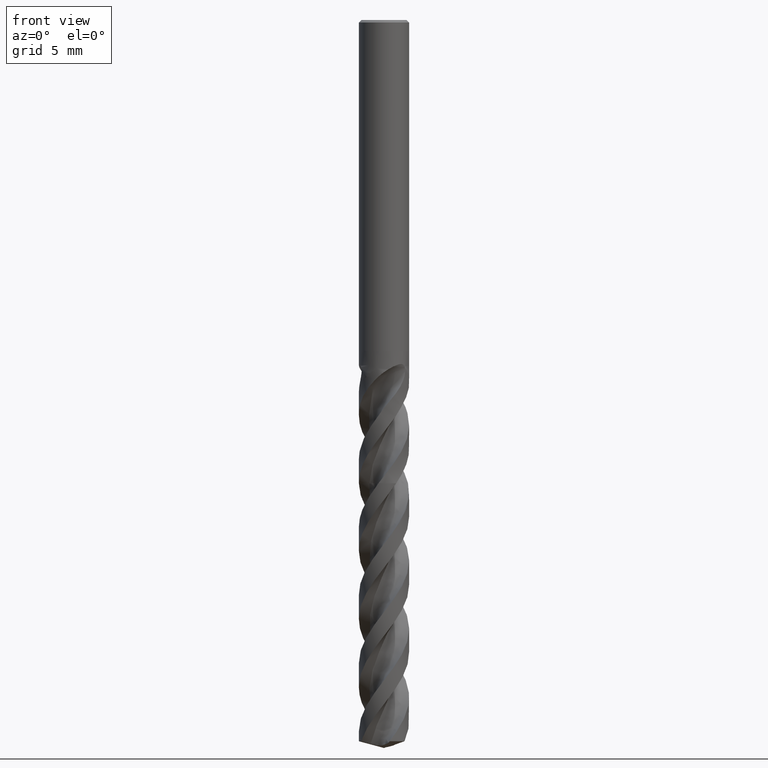
[diagram: clean part render]
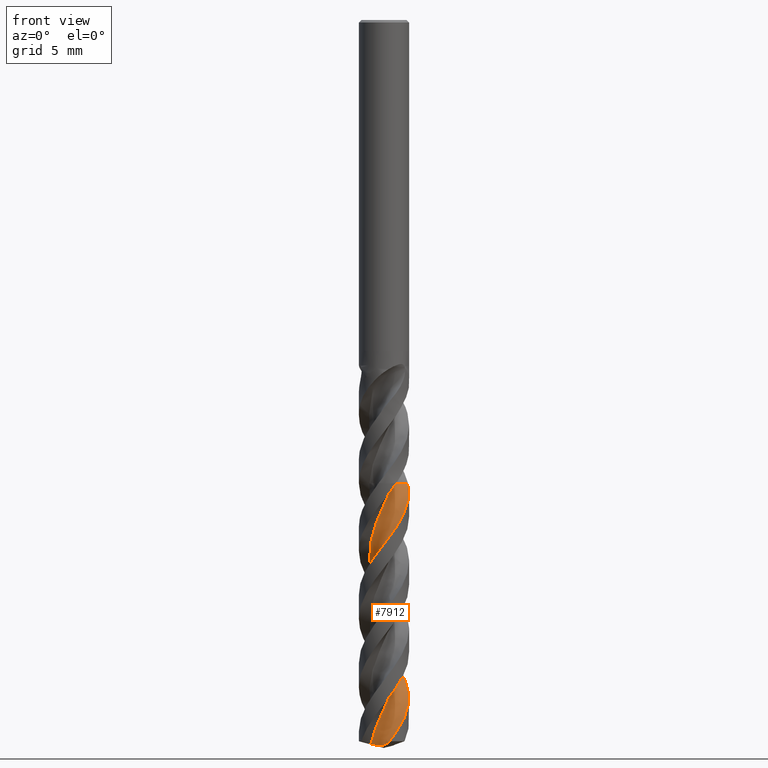
[diagram: same view with one face highlighted and labeled with its STEP entity id]
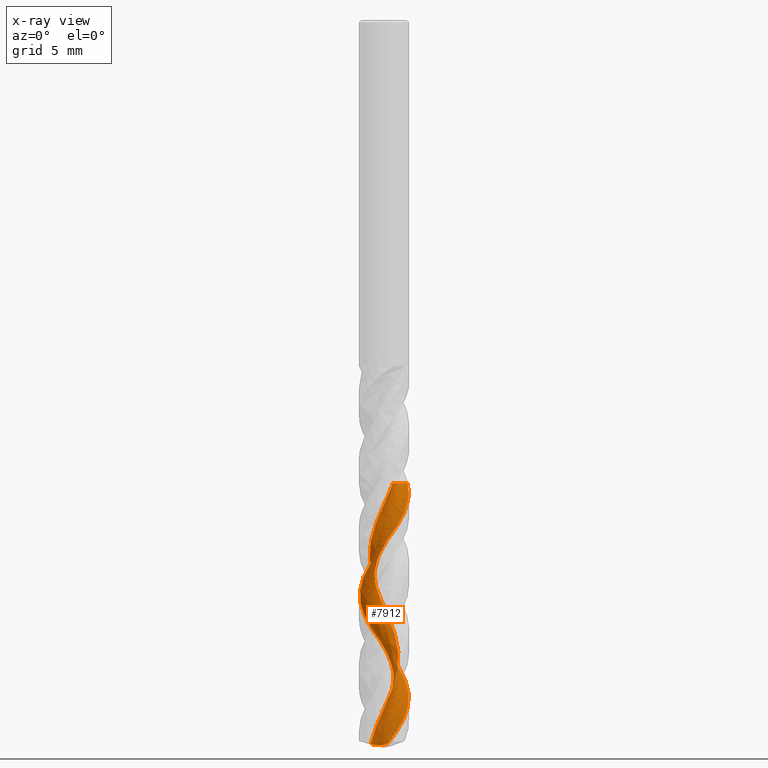
[diagram: x-ray of the same camera — body ghosted, the highlighted face saturated]
A machine part, front view. The second image highlights one B-rep face of the part: STEP entity #7912.
The next image is the same camera in x-ray: the body ghosted, the highlighted face saturated — about 0% of this face is hidden behind the body in this view.
In plain terms, the highlighted face is a freeform B-spline surface patch.
Its self-contained STEP definition (entity closure, byte-faithful):
#3330 = VERTEX_POINT('', #3331);
#3331 = CARTESIAN_POINT('', (0.674951373507723, -0.884292900200909, -35.));
#3337 = EDGE_CURVE('', #3330, #3338, #3340, .T.);
#3338 = VERTEX_POINT('', #3339);
#3339 = CARTESIAN_POINT('', (1.78170179399317, 0.568779606978585, -35.));
#3340 = B_SPLINE_CURVE_WITH_KNOTS('', 3, (#3341, #3342, #3343, #3344, #3345, #3346, #3347, #3348, #3349, #3350, #3351, #3352, #3353, #3354, #3355, #3356, #3357, #3358, #3359, #3360, #3361, #3362, #3363, #3364, #3365, #3366, #3367, #3368, #3369, #3370, #3371, #3372, #3373, #3374, #3375, #3376, #3377, #3378, #3379, #3380, #3381, #3382, #3383, #3384, #3385, #3386, #3387, #3388, #3389, #3390, #3391, #3392, #3393, #3394, #3395), .UNSPECIFIED., .F., .U., (4, 3, 3, 3, 3, 3, 3, 3, 3, 3, 3, 3, 3, 3, 3, 3, 3, 3, 4), (0., 0.132324855211031, 0.264404538585482, 0.396246487477675, 0.527856188815457, 0.659237353770378, 0.790392034522508, 0.921320690965383, 1.05202221184139, 1.06930589343182, 1.15730280134216, 1.28946437431475, 1.42138592904593, 1.55307358863559, 1.68453164840057, 1.81576271113416, 1.94676777006709, 2.07754624507811, 2.13929426573013), .UNSPECIFIED.);
#3341 = CARTESIAN_POINT('', (0.674951373507724, -0.884292900200909, -35.));
#3342 = CARTESIAN_POINT('', (0.661537442919636, -0.842273770295297, -35.));
#3343 = CARTESIAN_POINT('', (0.650602302046266, -0.799382014179555, -35.));
#3344 = CARTESIAN_POINT('', (0.642261175459596, -0.756069586181209, -35.));
#3345 = CARTESIAN_POINT('', (0.633935503334003, -0.712837407562334, -35.));
#3346 = CARTESIAN_POINT('', (0.628165047214315, -0.66903469666209, -35.));
#3347 = CARTESIAN_POINT('', (0.625010386404687, -0.62512130235405, -35.));
#3348 = CARTESIAN_POINT('', (0.621861403770803, -0.581286949180825, -35.));
#3349 = CARTESIAN_POINT('', (0.621307785934403, -0.537189334411207, -35.));
#3350 = CARTESIAN_POINT('', (0.623355324027949, -0.49328974218646, -35.));
#3351 = CARTESIAN_POINT('', (0.625399255259501, -0.449467481744349, -35.));
#3352 = CARTESIAN_POINT('', (0.63004226241018, -0.405690148728275, -35.));
#3353 = CARTESIAN_POINT('', (0.637235947709945, -0.36241406922766, -35.));
#3354 = CARTESIAN_POINT('', (0.644417141386364, -0.319213137368693, -35.));
#3355 = CARTESIAN_POINT('', (0.65416501835271, -0.27636200054907, -35.));
#3356 = CARTESIAN_POINT('', (0.666378320369397, -0.234305784481162, -35.));
#3357 = CARTESIAN_POINT('', (0.678570568226823, -0.192322067911731, -35.));
#3358 = CARTESIAN_POINT('', (0.693261825870369, -0.150985530236967, -35.));
#3359 = CARTESIAN_POINT('', (0.710300008936672, -0.110724088601099, -35.));
#3360 = CARTESIAN_POINT('', (0.727308829394363, -0.0705320311799859, -35.));
#3361 = CARTESIAN_POINT('', (0.74671500484929, -0.0312730250862654, -35.));
#3362 = CARTESIAN_POINT('', (0.76831833199571, 0.00664791516195154, -35.));
#3363 = CARTESIAN_POINT('', (0.789884181602139, 0.0445030700084587, -35.));
#3364 = CARTESIAN_POINT('', (0.813713507448883, 0.081154650408768, -35.));
#3365 = CARTESIAN_POINT('', (0.839561324934774, 0.116225848690496, -35.));
#3366 = CARTESIAN_POINT('', (0.842979383456507, 0.120863586798159, -35.));
#3367 = CARTESIAN_POINT('', (0.846433494702141, 0.12547496867952, -35.));
#3368 = CARTESIAN_POINT('', (0.849923036124366, 0.130059163208098, -35.));
#3369 = CARTESIAN_POINT('', (0.867689439281828, 0.153398805382352, -35.));
#3370 = CARTESIAN_POINT('', (0.886392165631483, 0.176054379532655, -35.));
#3371 = CARTESIAN_POINT('', (0.905943934935635, 0.197920158619001, -35.));
#3372 = CARTESIAN_POINT('', (0.935308518839727, 0.230760127965048, -35.));
#3373 = CARTESIAN_POINT('', (0.966677818842528, 0.261911064560424, -35.));
#3374 = CARTESIAN_POINT('', (0.999722106880618, 0.291045535596732, -35.));
#3375 = CARTESIAN_POINT('', (1.03270638328503, 0.320127095606445, -35.));
#3376 = CARTESIAN_POINT('', (1.0674747996768, 0.347301148094264, -35.));
#3377 = CARTESIAN_POINT('', (1.10366322203446, 0.372283095772234, -35.));
#3378 = CARTESIAN_POINT('', (1.1397874828062, 0.397220750793106, -35.));
#3379 = CARTESIAN_POINT('', (1.1774524755786, 0.420060920111805, -35.));
#3380 = CARTESIAN_POINT('', (1.21626512401621, 0.440565241010173, -35.));
#3381 = CARTESIAN_POINT('', (1.2550101018968, 0.461033812252891, -35.));
#3382 = CARTESIAN_POINT('', (1.29503315141055, 0.479245718463628, -35.));
#3383 = CARTESIAN_POINT('', (1.33591803869473, 0.495011558480756, -35.));
#3384 = CARTESIAN_POINT('', (1.37673232743167, 0.510750174614559, -35.));
#3385 = CARTESIAN_POINT('', (1.41854658921301, 0.524105611796254, -35.));
#3386 = CARTESIAN_POINT('', (1.46092745845685, 0.534939453453143, -35.));
#3387 = CARTESIAN_POINT('', (1.50323534012195, 0.545754637260745, -35.));
#3388 = CARTESIAN_POINT('', (1.54625365378393, 0.554094199371252, -35.));
#3389 = CARTESIAN_POINT('', (1.58953808536199, 0.559872004728263, -35.));
#3390 = CARTESIAN_POINT('', (1.63274765298943, 0.565639816900213, -35.));
#3391 = CARTESIAN_POINT('', (1.67637079106134, 0.568874562429309, -35.));
#3392 = CARTESIAN_POINT('', (1.7199584917874, 0.569542946463172, -35.));
#3393 = CARTESIAN_POINT('', (1.74053874587264, 0.569858528909923, -35.));
#3394 = CARTESIAN_POINT('', (1.76113563216076, 0.569603887256471, -35.));
#3395 = CARTESIAN_POINT('', (1.78170179399317, 0.568779606978589, -35.));
#3868 = VERTEX_POINT('', #3869);
#3869 = CARTESIAN_POINT('', (-1.00562367595192, -0.533101370474251, -54.6950229589593));
#3891 = EDGE_CURVE('', #3868, #3330, #3892, .T.);
#3892 = (
   BOUNDED_CURVE ()
   B_SPLINE_CURVE (3, (#3893, #3894, #3895, #3896, #3897, #3898, #3899, #3900, #3901, #3902, #3903, #3904, #3905, #3906, #3907, #3908, #3909, #3910, #3911, #3912, #3913, #3914, #3915, #3916, #3917, #3918, #3919, #3920, #3921, #3922, #3923, #3924, #3925, #3926, #3927, #3928, #3929, #3930, #3931, #3932, #3933, #3934, #3935, #3936, #3937, #3938, #3939, #3940, #3941, #3942, #3943, #3944, #3945, #3946, #3947, #3948, #3949, #3950, #3951, #3952, #3953, #3954, #3955, #3956, #3957, #3958, #3959, #3960, #3961, #3962, #3963, #3964, #3965, #3966, #3967, #3968, #3969, #3970, #3971, #3972), .UNSPECIFIED., .F., .U.)
   B_SPLINE_CURVE_WITH_KNOTS ((4, 1, 1, 1, 1, 1, 1, 1, 1, 1, 1, 1, 1, 1, 1, 1, 1, 1, 1, 1, 1, 1, 1, 1, 1, 1, 1, 1, 1, 1, 1, 1, 1, 1, 1, 1, 1, 1, 1, 1, 1, 1, 1, 1, 1, 1, 1, 1, 1, 1, 1, 1, 1, 1, 1, 1, 1, 1, 1, 1, 1, 1, 1, 1, 1, 1, 1, 1, 1, 1, 1, 1, 1, 1, 1, 1, 1, 4), (0.354977041040653, 0.51875, 0.778125, 1.0375, 1.296875, 1.55625, 1.815625, 2.075, 2.334375, 2.59375, 2.853125, 3.1125, 3.371875, 3.63125, 3.890625, 4.15, 4.409375, 4.66875, 4.928125, 5.1875, 5.446875, 5.70625, 5.965625, 6.225, 6.484375, 6.74375, 7.003125, 7.2625, 7.521875, 7.78125, 8.040625, 8.3, 8.559375, 8.81875, 9.078125, 9.3375, 9.596875, 9.85625, 10.115625, 10.375, 10.634375, 10.89375, 11.153125, 11.4125, 11.671875, 11.93125, 12.190625, 12.45, 12.709375, 12.96875, 13.228125, 13.4875, 13.746875, 14.00625, 14.265625, 14.525, 14.784375, 15.04375, 15.303125, 15.5625, 15.821875, 16.08125, 16.340625, 16.6, 16.859375, 17.11875, 17.378125, 17.6375, 17.896875, 18.15625, 18.415625, 18.675, 18.934375, 19.19375, 19.453125, 19.7125, 19.971875, 20.05), .UNSPECIFIED.)
   CURVE ()
   GEOMETRIC_REPRESENTATION_ITEM ()
   RATIONAL_B_SPLINE_CURVE ((1., 1., 1., 1., 1., 1., 1., 1., 1., 1., 1., 1., 1., 1., 1., 1., 1., 1., 1., 1., 1., 1., 1., 1., 1., 1., 1., 1., 1., 1., 1., 1., 1., 1., 1., 1., 1., 1., 1., 1., 1., 1., 1., 1., 1., 1., 1., 1., 1., 1., 1., 1., 1., 1., 1., 1., 1., 1., 1., 1., 1., 1., 1., 1., 1., 1., 1., 1., 1., 1., 1., 1., 1., 1., 1., 1., 1., 1., 1., 1.))
   REPRESENTATION_ITEM ('')
);
#3893 = CARTESIAN_POINT('', (-1.00562367595192, -0.53310137047425, -54.6950229589593));
#3894 = CARTESIAN_POINT('', (-0.99334295587597, -0.555223008104832, -54.6404319726396));
#3895 = CARTESIAN_POINT('', (-0.959737271992538, -0.611290401804851, -54.4993826529864));
#3896 = CARTESIAN_POINT('', (-0.898023484027774, -0.696671017011843, -54.271875));
#3897 = CARTESIAN_POINT('', (-0.817993059116004, -0.785908982576726, -54.0125));
#3898 = CARTESIAN_POINT('', (-0.729206628808456, -0.866094411655966, -53.753125));
#3899 = CARTESIAN_POINT('', (-0.632674666287314, -0.936380698580865, -53.49375));
#3900 = CARTESIAN_POINT('', (-0.529487606907004, -0.9960321706969, -53.234375));
#3901 = CARTESIAN_POINT('', (-0.420804508214761, -1.04443206334768, -52.975));
#3902 = CARTESIAN_POINT('', (-0.307840033196896, -1.08108861013852, -52.715625));
#3903 = CARTESIAN_POINT('', (-0.191851153682692, -1.10563992196938, -52.45625));
#3904 = CARTESIAN_POINT('', (-0.0741233811668091, -1.11785741238433, -52.196875));
#3905 = CARTESIAN_POINT('', (0.044043236782113, -1.11764779121941, -51.9375));
#3906 = CARTESIAN_POINT('', (0.161348228832843, -1.10505359704103, -51.678125));
#3907 = CARTESIAN_POINT('', (0.276504764093841, -1.08025227218488, -51.41875));
#3908 = CARTESIAN_POINT('', (0.388253520711246, -1.04355379475204, -51.159375));
#3909 = CARTESIAN_POINT('', (0.49537621182682, -0.99539689832074, -50.9));
#3910 = CARTESIAN_POINT('', (0.596708626626702, -0.936343924520861, -50.640625));
#3911 = CARTESIAN_POINT('', (0.691153049693999, -0.867074367912079, -50.38125));
#3912 = CARTESIAN_POINT('', (0.777689928960468, -0.78837718610654, -50.121875));
#3913 = CARTESIAN_POINT('', (0.855388670901704, -0.701141960796796, -49.8625));
#3914 = CARTESIAN_POINT('', (0.923417451213092, -0.606349007121736, -49.603125));
#3915 = CARTESIAN_POINT('', (0.981051939918354, -0.505058539521402, -49.34375));
#3916 = CARTESIAN_POINT('', (1.02768285158912, -0.398399011787153, -49.084375));
#3917 = CARTESIAN_POINT('', (1.06282224396705, -0.287554757313991, -48.825));
#3918 = CARTESIAN_POINT('', (1.0861085016472, -0.173753062526131, -48.565625));
#3919 = CARTESIAN_POINT('', (1.09730995546281, -0.058250812009026, -48.30625));
#3920 = CARTESIAN_POINT('', (1.09632710266161, 0.0576791520116687, -48.046875));
#3921 = CARTESIAN_POINT('', (1.08319340773318, 0.172761810587845, -47.7875));
#3922 = CARTESIAN_POINT('', (1.0580746786829, 0.285733743005182, -47.528125));
#3923 = CARTESIAN_POINT('', (1.02126702849735, 0.39535674983786, -47.26875));
#3924 = CARTESIAN_POINT('', (0.97319344635567, 0.500431180091764, -47.009375));
#3925 = CARTESIAN_POINT('', (0.914399017660373, 0.599808821843585, -46.75));
#3926 = CARTESIAN_POINT('', (0.84554484604088, 0.692405220649528, -46.490625));
#3927 = CARTESIAN_POINT('', (0.767400743981877, 0.777211296258752, -46.23125));
#3928 = CARTESIAN_POINT('', (0.680836771508699, 0.8533041357561, -45.971875));
#3929 = CARTESIAN_POINT('', (0.586813714295013, 0.919856850095544, -45.7125));
#3930 = CARTESIAN_POINT('', (0.486372603523496, 0.97614739097705, -45.453125));
#3931 = CARTESIAN_POINT('', (0.380623389717946, 1.02156623606108, -45.19375));
#3932 = CARTESIAN_POINT('', (0.27073289147616, 1.05562286249189, -44.934375));
#3933 = CARTESIAN_POINT('', (0.157912147479781, 1.07795094148928, -44.675));
#3934 = CARTESIAN_POINT('', (0.0434033062662939, 1.08831220023673, -44.415625));
#3935 = CARTESIAN_POINT('', (-0.0715338070417372, 1.08659891130338, -44.15625));
#3936 = CARTESIAN_POINT('', (-0.185635304590107, 1.07283498424423, -43.896875));
#3937 = CARTESIAN_POINT('', (-0.297646885981165, 1.04717564868011, -43.6375));
#3938 = CARTESIAN_POINT('', (-0.406337380255143, 1.0099057329158, -43.378125));
#3939 = CARTESIAN_POINT('', (-0.51051203632485, 0.961436556861463, -43.11875));
#3940 = CARTESIAN_POINT('', (-0.609025421209104, 0.902301472527479, -42.859375));
#3941 = CARTESIAN_POINT('', (-0.700793789549599, 0.83315009952005, -42.6));
#3942 = CARTESIAN_POINT('', (-0.784806793447668, 0.754741316627647, -42.340625));
#3943 = CARTESIAN_POINT('', (-0.860138408564136, 0.667935083619055, -42.08125));
#3944 = CARTESIAN_POINT('', (-0.925956960616904, 0.573683179638123, -41.821875));
#3945 = CARTESIAN_POINT('', (-0.981534145803538, 0.473018955953305, -41.5625));
#3946 = CARTESIAN_POINT('', (-1.02625294917452, 0.367046211185321, -41.303125));
#3947 = CARTESIAN_POINT('', (-1.05961437647995, 0.256927306387256, -41.04375));
#3948 = CARTESIAN_POINT('', (-1.08124292739194, 0.143870645392749, -40.784375));
#3949 = CARTESIAN_POINT('', (-1.09089075114041, 0.0291176525968896, -40.525));
#3950 = CARTESIAN_POINT('', (-1.08844043935835, -0.0860706142795193, -40.265625));
#3951 = CARTESIAN_POINT('', (-1.07390642517347, -0.200427074925086, -40.00625));
#3952 = CARTESIAN_POINT('', (-1.04743497216182, -0.312692316650011, -39.746875));
#3953 = CARTESIAN_POINT('', (-1.00930275154668, -0.421628219037311, -39.4875));
#3954 = CARTESIAN_POINT('', (-0.95991402083158, -0.526031368481493, -39.228125));
#3955 = CARTESIAN_POINT('', (-0.899796431749017, -0.624746120048925, -38.96875));
#3956 = CARTESIAN_POINT('', (-0.829595509835159, -0.716677167562053, -38.709375));
#3957 = CARTESIAN_POINT('', (-0.750067861956964, -0.800801487726972, -38.45));
#3958 = CARTESIAN_POINT('', (-0.662073181578284, -0.876179530443181, -38.190625));
#3959 = CARTESIAN_POINT('', (-0.566565134315308, -0.941965535094438, -37.93125));
#3960 = CARTESIAN_POINT('', (-0.46458121826719, -0.997416861544876, -37.671875));
#3961 = CARTESIAN_POINT('', (-0.357231704590727, -1.04190223466663, -37.4125));
#3962 = CARTESIAN_POINT('', (-0.245687773701838, -1.07490881240433, -37.153125));
#3963 = CARTESIAN_POINT('', (-0.131168971228726, -1.09604799952507, -36.89375));
#3964 = CARTESIAN_POINT('', (-0.0149301153162626, -1.10505994218957, -36.634375));
#3965 = CARTESIAN_POINT('', (0.101752206990385, -1.10181665217902, -36.375));
#3966 = CARTESIAN_POINT('', (0.217593411841213, -1.08632372388506, -36.115625));
#3967 = CARTESIAN_POINT('', (0.331314813468479, -1.05872062187226, -35.85625));
#3968 = CARTESIAN_POINT('', (0.441657494438099, -1.01927953180376, -35.596875));
#3969 = CARTESIAN_POINT('', (0.547396003628675, -0.968402782627887, -35.3375));
#3970 = CARTESIAN_POINT('', (0.624068874359971, -0.921010298095991, -35.1385416666667));
#3971 = CARTESIAN_POINT('', (0.665475606666968, -0.891317794391132, -35.0260416666667));
#3972 = CARTESIAN_POINT('', (0.674951373507723, -0.884292900200909, -35.));
#7530 = EDGE_CURVE('', #7531, #3338, #7533, .T.);
#7531 = VERTEX_POINT('', #7532);
#7532 = CARTESIAN_POINT('', (0.955730633637614, -1.64212635199811, -53.7553695871318));
#7533 = (
   BOUNDED_CURVE ()
   B_SPLINE_CURVE (3, (#7534, #7535, #7536, #7537, #7538, #7539, #7540, #7541, #7542, #7543, #7544, #7545, #7546, #7547, #7548, #7549, #7550, #7551, #7552, #7553, #7554, #7555, #7556, #7557, #7558, #7559, #7560, #7561, #7562, #7563, #7564, #7565, #7566, #7567, #7568, #7569, #7570, #7571, #7572, #7573, #7574, #7575, #7576, #7577, #7578, #7579, #7580, #7581, #7582, #7583, #7584, #7585, #7586, #7587, #7588, #7589, #7590, #7591, #7592, #7593, #7594, #7595, #7596, #7597, #7598, #7599, #7600, #7601, #7602, #7603, #7604, #7605, #7606, #7607, #7608, #7609, #7610), .UNSPECIFIED., .F., .U.)
   B_SPLINE_CURVE_WITH_KNOTS ((4, 1, 1, 1, 1, 1, 1, 1, 1, 1, 1, 1, 1, 1, 1, 1, 1, 1, 1, 1, 1, 1, 1, 1, 1, 1, 1, 1, 1, 1, 1, 1, 1, 1, 1, 1, 1, 1, 1, 1, 1, 1, 1, 1, 1, 1, 1, 1, 1, 1, 1, 1, 1, 1, 1, 1, 1, 1, 1, 1, 1, 1, 1, 1, 1, 1, 1, 1, 1, 1, 1, 1, 1, 1, 4), (1.29463041286819, 1.296875, 1.55625, 1.815625, 2.075, 2.334375, 2.59375, 2.853125, 3.1125, 3.371875, 3.63125, 3.890625, 4.15, 4.409375, 4.66875, 4.928125, 5.1875, 5.446875, 5.70625, 5.965625, 6.225, 6.484375, 6.74375, 7.003125, 7.2625, 7.521875, 7.78125, 8.040625, 8.3, 8.559375, 8.81875, 9.078125, 9.3375, 9.596875, 9.85625, 10.115625, 10.375, 10.634375, 10.89375, 11.153125, 11.4125, 11.671875, 11.93125, 12.190625, 12.45, 12.709375, 12.96875, 13.228125, 13.4875, 13.746875, 14.00625, 14.265625, 14.525, 14.784375, 15.04375, 15.303125, 15.5625, 15.821875, 16.08125, 16.340625, 16.6, 16.859375, 17.11875, 17.378125, 17.6375, 17.896875, 18.15625, 18.415625, 18.675, 18.934375, 19.19375, 19.453125, 19.7125, 19.971875, 20.05), .UNSPECIFIED.)
   CURVE ()
   GEOMETRIC_REPRESENTATION_ITEM ()
   RATIONAL_B_SPLINE_CURVE ((1., 1., 1., 1., 1., 1., 1., 1., 1., 1., 1., 1., 1., 1., 1., 1., 1., 1., 1., 1., 1., 1., 1., 1., 1., 1., 1., 1., 1., 1., 1., 1., 1., 1., 1., 1., 1., 1., 1., 1., 1., 1., 1., 1., 1., 1., 1., 1., 1., 1., 1., 1., 1., 1., 1., 1., 1., 1., 1., 1., 1., 1., 1., 1., 1., 1., 1., 1., 1., 1., 1., 1., 1., 1., 1., 1., 1.))
   REPRESENTATION_ITEM ('')
);
#7534 = CARTESIAN_POINT('', (0.955730633637614, -1.64212635199811, -53.7553695871318));
#7535 = CARTESIAN_POINT('', (0.956225643247573, -1.64182627978699, -53.7546213914212));
#7536 = CARTESIAN_POINT('', (1.01390546281331, -1.6068251348262, -53.6674148623773));
#7537 = CARTESIAN_POINT('', (1.12495617757275, -1.53109231013626, -53.49375));
#7538 = CARTESIAN_POINT('', (1.27773820684792, -1.40143315631063, -53.234375));
#7539 = CARTESIAN_POINT('', (1.41581206504808, -1.25671119419872, -52.975));
#7540 = CARTESIAN_POINT('', (1.53771244983453, -1.09857165480039, -52.715625));
#7541 = CARTESIAN_POINT('', (1.64215578195343, -0.928800180093096, -52.45625));
#7542 = CARTESIAN_POINT('', (1.72805341265556, -0.749302958039937, -52.196875));
#7543 = CARTESIAN_POINT('', (1.79452269675248, -0.562085677079072, -51.9375));
#7544 = CARTESIAN_POINT('', (1.84089581353194, -0.369231482430139, -51.678125));
#7545 = CARTESIAN_POINT('', (1.86672625290706, -0.172878184686448, -51.41875));
#7546 = CARTESIAN_POINT('', (1.87179290615013, 0.0248050376548873, -51.159375));
#7547 = CARTESIAN_POINT('', (1.8561017267908, 0.2216411915282, -50.9));
#7548 = CARTESIAN_POINT('', (1.81988495273588, 0.415469027716012, -50.640625));
#7549 = CARTESIAN_POINT('', (1.76359790639832, 0.604166354163446, -50.38125));
#7550 = CARTESIAN_POINT('', (1.6879134150027, 0.785672857588042, -50.121875));
#7551 = CARTESIAN_POINT('', (1.59371391809374, 0.958012192811886, -49.8625));
#7552 = CARTESIAN_POINT('', (1.48208135333663, 1.11931310777674, -49.603125));
#7553 = CARTESIAN_POINT('', (1.35428493472591, 1.26782938310869, -49.34375));
#7554 = CARTESIAN_POINT('', (1.21176695907818, 1.40195837826421, -49.084375));
#7555 = CARTESIAN_POINT('', (1.05612679695695, 1.52025799156815, -48.825));
#7556 = CARTESIAN_POINT('', (0.889103242761314, 1.62146185868201, -48.565625));
#7557 = CARTESIAN_POINT('', (0.712555415420784, 1.704492633034, -48.30625));
#7558 = CARTESIAN_POINT('', (0.52844241581069, 1.76847321229991, -48.046875));
#7559 = CARTESIAN_POINT('', (0.338801959493719, 1.8127357969301, -47.7875));
#7560 = CARTESIAN_POINT('', (0.145728213581242, 1.83682868974358, -47.528125));
#7561 = CARTESIAN_POINT('', (-0.0486509257028929, 1.8405207695171, -47.26875));
#7562 = CARTESIAN_POINT('', (-0.242196872857317, 1.82380359603676, -47.009375));
#7563 = CARTESIAN_POINT('', (-0.432783465641224, 1.78689112899988, -46.75));
#7564 = CARTESIAN_POINT('', (-0.618319905365455, 1.7302170681996, -46.490625));
#7565 = CARTESIAN_POINT('', (-0.79677328226939, 1.65442984733727, -46.23125));
#7566 = CARTESIAN_POINT('', (-0.966190448108457, 1.56038533833345, -45.971875));
#7567 = CARTESIAN_POINT('', (-1.1247190053229, 1.44913734689842, -45.7125));
#7568 = CARTESIAN_POINT('', (-1.27062719177923, 1.32192600313303, -45.453125));
#7569 = CARTESIAN_POINT('', (-1.40232245196869, 1.18016417282859, -45.19375));
#7570 = CARTESIAN_POINT('', (-1.51836849958627, 1.02542203569755, -44.934375));
#7571 = CARTESIAN_POINT('', (-1.61750069245271, 0.859409995787107, -44.675));
#7572 = CARTESIAN_POINT('', (-1.69863955861334, 0.683960106614521, -44.415625));
#7573 = CARTESIAN_POINT('', (-1.76090233196687, 0.501006208939843, -44.15625));
#7574 = CARTESIAN_POINT('', (-1.80361237674299, 0.312562992406071, -43.896875));
#7575 = CARTESIAN_POINT('', (-1.82630640234387, 0.120704203393195, -43.6375));
#7576 = CARTESIAN_POINT('', (-1.82873939326433, -0.0724597697599312, -43.378125));
#7577 = CARTESIAN_POINT('', (-1.81088720277013, -0.264804696601248, -43.11875));
#7578 = CARTESIAN_POINT('', (-1.77294678349903, -0.454215447965326, -42.859375));
#7579 = CARTESIAN_POINT('', (-1.71533405290421, -0.638608839965132, -42.6));
#7580 = CARTESIAN_POINT('', (-1.63867941623167, -0.815956136679795, -42.340625));
#7581 = CARTESIAN_POINT('', (-1.54382099425936, -0.984304973211972, -42.08125));
#7582 = CARTESIAN_POINT('', (-1.43179562707543, -1.14180046682506, -41.821875));
#7583 = CARTESIAN_POINT('', (-1.30382774849025, -1.28670529231295, -41.5625));
#7584 = CARTESIAN_POINT('', (-1.16131624802309, -1.41741850851815, -41.303125));
#7585 = CARTESIAN_POINT('', (-1.00581945855195, -1.53249293588806, -41.04375));
#7586 = CARTESIAN_POINT('', (-0.839038427444968, -1.63065090001461, -40.784375));
#7587 = CARTESIAN_POINT('', (-0.662798647103924, -1.71079817308502, -40.525));
#7588 = CARTESIAN_POINT('', (-0.479030437155664, -1.77203596391076, -40.265625));
#7589 = CARTESIAN_POINT('', (-0.289748184858702, -1.81367082750802, -40.00625));
#7590 = CARTESIAN_POINT('', (-0.0970286624999541, -1.83522238686956, -39.746875));
#7591 = CARTESIAN_POINT('', (0.0970113494868661, -1.83642878237616, -39.4875));
#7592 = CARTESIAN_POINT('', (0.290237897349892, -1.81724978801335, -39.228125));
#7593 = CARTESIAN_POINT('', (0.480522905301936, -1.77786755794525, -38.96875));
#7594 = CARTESIAN_POINT('', (0.665767199098761, -1.7186849918034, -38.709375));
#7595 = CARTESIAN_POINT('', (0.843923257616365, -1.64032173202097, -38.45));
#7596 = CARTESIAN_POINT('', (1.01301745052736, -1.54360783142695, -38.190625));
#7597 = CARTESIAN_POINT('', (1.17117152508962, -1.42957515385494, -37.93125));
#7598 = CARTESIAN_POINT('', (1.3166231124447, -1.29944659446476, -37.671875));
#7599 = CARTESIAN_POINT('', (1.44774503360999, -1.15462322957564, -37.4125));
#7600 = CARTESIAN_POINT('', (1.56306319744429, -0.996669527826988, -37.153125));
#7601 = CARTESIAN_POINT('', (1.66127289715172, -0.827296775188876, -36.89375));
#7602 = CARTESIAN_POINT('', (1.74125332822601, -0.648344885521449, -36.634375));
#7603 = CARTESIAN_POINT('', (1.80208016896326, -0.461762785829927, -36.375));
#7604 = CARTESIAN_POINT('', (1.84303608460486, -0.269587580893999, -36.115625));
#7605 = CARTESIAN_POINT('', (1.86361903761644, -0.0739227154007117, -35.85625));
#7606 = CARTESIAN_POINT('', (1.86354830934481, 0.123084637066004, -35.596875));
#7607 = CARTESIAN_POINT('', (1.84276816209738, 0.319266719954315, -35.3375));
#7608 = CARTESIAN_POINT('', (1.81107361689352, 0.467458104726308, -35.1385416666667));
#7609 = CARTESIAN_POINT('', (1.7874678611368, 0.549804910746635, -35.0260416666667));
#7610 = CARTESIAN_POINT('', (1.78170179399317, 0.568779606978585, -35.));
#7912 = ADVANCED_FACE('', (#7913), #8039, .T.);
#7913 = FACE_OUTER_BOUND('', #7914, .T.);
#7914 = EDGE_LOOP('', (#7915, #7916, #7917, #8022, #8038));
#7915 = ORIENTED_EDGE('', *, *, #3337, .F.);
#7916 = ORIENTED_EDGE('', *, *, #3891, .F.);
#7917 = ORIENTED_EDGE('', *, *, #7918, .T.);
#7918 = EDGE_CURVE('', #3868, #7919, #7921, .T.);
#7919 = VERTEX_POINT('', #7920);
#7920 = CARTESIAN_POINT('', (0.432445187128842, -1.85013274121861, -54.4908965343809));
#7921 = B_SPLINE_CURVE_WITH_KNOTS('', 3, (#7922, #7923, #7924, #7925, #7926, #7927, #7928, #7929, #7930, #7931, #7932, #7933, #7934, #7935, #7936, #7937, #7938, #7939, #7940, #7941, #7942, #7943, #7944, #7945, #7946, #7947, #7948, #7949, #7950, #7951, #7952, #7953, #7954, #7955, #7956, #7957, #7958, #7959, #7960, #7961, #7962, #7963, #7964, #7965, #7966, #7967, #7968, #7969, #7970, #7971, #7972, #7973, #7974, #7975, #7976, #7977, #7978, #7979, #7980, #7981, #7982, #7983, #7984, #7985, #7986, #7987, #7988, #7989, #7990, #7991, #7992, #7993, #7994, #7995, #7996, #7997, #7998, #7999, #8000, #8001, #8002, #8003, #8004, #8005, #8006, #8007, #8008, #8009, #8010, #8011, #8012, #8013, #8014, #8015, #8016, #8017, #8018, #8019, #8020, #8021), .UNSPECIFIED., .F., .U., (4, 3, 3, 3, 3, 3, 3, 3, 3, 3, 3, 3, 3, 3, 3, 3, 3, 3, 3, 3, 3, 3, 3, 3, 3, 3, 3, 3, 3, 3, 3, 3, 3, 4), (0., 0.087725901876653, 0.175311830752807, 0.262699139708601, 0.320891676404409, 0.379008350910774, 0.43705569608223, 0.495051570647491, 0.55302505963327, 0.611012420877849, 0.669049275825852, 0.727161688860572, 0.785360111064741, 0.843638797887572, 0.901980143644151, 0.960361063107852, 1.01875855730738, 1.0771530939129, 1.09445337118379, 1.11177665237776, 1.13778569545265, 1.16380821295473, 1.25241170919604, 1.34070843695489, 1.42875604419349, 1.51660171837143, 1.60428215149694, 1.69182509413769, 1.77925117514903, 1.86657551169658, 1.95380899267278, 2.08420857842126, 2.21435408333126, 2.22799601840479), .UNSPECIFIED.);
#7922 = CARTESIAN_POINT('', (-1.00562367595192, -0.533101370474253, -54.6950229589593));
#7923 = CARTESIAN_POINT('', (-0.978264352715247, -0.525886268709509, -54.7024055323369));
#7924 = CARTESIAN_POINT('', (-0.950476564832614, -0.520055092920667, -54.7097025868731));
#7925 = CARTESIAN_POINT('', (-0.92245408927905, -0.515688309631352, -54.7168275232709));
#7926 = CARTESIAN_POINT('', (-0.894476325605339, -0.511328493859571, -54.7239410913191));
#7927 = CARTESIAN_POINT('', (-0.86619253646462, -0.508417792422854, -54.7309015938829));
#7928 = CARTESIAN_POINT('', (-0.837811775897269, -0.507008142613706, -54.737603192286));
#7929 = CARTESIAN_POINT('', (-0.80949537480496, -0.505601689488505, -54.7442895933742));
#7930 = CARTESIAN_POINT('', (-0.78100624995228, -0.505686417638029, -54.7507362246225));
#7931 = CARTESIAN_POINT('', (-0.75256346241472, -0.507276688263845, -54.7568176321204));
#7932 = CARTESIAN_POINT('', (-0.733622978066498, -0.508335673634317, -54.7608673337672));
#7933 = CARTESIAN_POINT('', (-0.714673892727782, -0.510062643972033, -54.7647609982972));
#7934 = CARTESIAN_POINT('', (-0.695782137927968, -0.512450393801595, -54.7684574468798));
#7935 = CARTESIAN_POINT('', (-0.676915011198399, -0.514835030862059, -54.7721490766196));
#7936 = CARTESIAN_POINT('', (-0.658081304863655, -0.5178818191091, -54.7756485233122));
#7937 = CARTESIAN_POINT('', (-0.639346295231419, -0.521572972903681, -54.7789131661441));
#7938 = CARTESIAN_POINT('', (-0.620633635222046, -0.525259723396802, -54.7821739144739));
#7939 = CARTESIAN_POINT('', (-0.601995780060196, -0.529594020433397, -54.7852043384433));
#7940 = CARTESIAN_POINT('', (-0.583495804590725, -0.534546673177037, -54.7879630323235));
#7941 = CARTESIAN_POINT('', (-0.565012233057543, -0.539494934401336, -54.7907192800687));
#7942 = CARTESIAN_POINT('', (-0.546643139281351, -0.545066645753712, -54.7932074745267));
#7943 = CARTESIAN_POINT('', (-0.528447586274785, -0.55122118672407, -54.7953910687262));
#7944 = CARTESIAN_POINT('', (-0.510259056491873, -0.557373352129491, -54.7975738200896));
#7945 = CARTESIAN_POINT('', (-0.49222172013755, -0.56411530443885, -54.799454611386));
#7946 = CARTESIAN_POINT('', (-0.474388661417708, -0.571396223124107, -54.8010058683432));
#7947 = CARTESIAN_POINT('', (-0.456551335492112, -0.578678884033096, -54.8025574964948));
#7948 = CARTESIAN_POINT('', (-0.438897583259544, -0.586509044918489, -54.8037810595156));
#7949 = CARTESIAN_POINT('', (-0.421472668692477, -0.594828420478789, -54.8046615358806));
#7950 = CARTESIAN_POINT('', (-0.404032881512908, -0.603154896839983, -54.8055427637547));
#7951 = CARTESIAN_POINT('', (-0.386803371055375, -0.611980164912788, -54.8060812456454));
#7952 = CARTESIAN_POINT('', (-0.369820307573821, -0.621242476819914, -54.8062763890415));
#7953 = CARTESIAN_POINT('', (-0.352815133869644, -0.630516847315791, -54.8064717864944));
#7954 = CARTESIAN_POINT('', (-0.336040287763431, -0.640238201288946, -54.8063232861167));
#7955 = CARTESIAN_POINT('', (-0.319522564284423, -0.6503457886041, -54.8058441716145));
#7956 = CARTESIAN_POINT('', (-0.302980393779325, -0.660468335635167, -54.8053643479997));
#7957 = CARTESIAN_POINT('', (-0.286681713296638, -0.670986760551889, -54.8045527843854));
#7958 = CARTESIAN_POINT('', (-0.270644796522886, -0.681845161670523, -54.8034338475437));
#7959 = CARTESIAN_POINT('', (-0.254585762362432, -0.692718538202441, -54.8023133675151));
#7960 = CARTESIAN_POINT('', (-0.238777167173281, -0.703940758602954, -54.8008841399149));
#7961 = CARTESIAN_POINT('', (-0.223230494759284, -0.715463215421243, -54.7991775829751));
#7962 = CARTESIAN_POINT('', (-0.207667107179419, -0.726998060728322, -54.7974691912131));
#7963 = CARTESIAN_POINT('', (-0.192356305374449, -0.738840991816447, -54.7954820673801));
#7964 = CARTESIAN_POINT('', (-0.177304878526822, -0.750951546512038, -54.7932506314191));
#7965 = CARTESIAN_POINT('', (-0.162243242097121, -0.763070315957193, -54.7910176818457));
#7966 = CARTESIAN_POINT('', (-0.147433260230621, -0.775463512406414, -54.7885390971329));
#7967 = CARTESIAN_POINT('', (-0.132878993126035, -0.788098412226951, -54.7858490889217));
#7968 = CARTESIAN_POINT('', (-0.118320593967094, -0.800736899180557, -54.783158316999));
#7969 = CARTESIAN_POINT('', (-0.104011450406911, -0.81362295928457, -54.7802549053527));
#7970 = CARTESIAN_POINT('', (-0.0899544412280115, -0.826730487577171, -54.7771707868255));
#7971 = CARTESIAN_POINT('', (-0.0758981439790812, -0.839837352027124, -54.7740868244962));
#7972 = CARTESIAN_POINT('', (-0.06208847917495, -0.853170797713707, -54.7708210311633));
#7973 = CARTESIAN_POINT('', (-0.0485282051429787, -0.866709981943032, -54.7674020151806));
#7974 = CARTESIAN_POINT('', (-0.0445107659395972, -0.870721172968852, -54.7663890792463));
#7975 = CARTESIAN_POINT('', (-0.0405149463316569, -0.874750717625299, -54.7653626051293));
#7976 = CARTESIAN_POINT('', (-0.0365408253162903, -0.87879814485029, -54.7643232758172));
#7977 = CARTESIAN_POINT('', (-0.032561419970924, -0.882850953879465, -54.7632825645242));
#7978 = CARTESIAN_POINT('', (-0.0286036562403119, -0.886921809995557, -54.7622289338414));
#7979 = CARTESIAN_POINT('', (-0.0246676186114722, -0.891010268026163, -54.7611630414259));
#7980 = CARTESIAN_POINT('', (-0.0187580815505314, -0.897148647922976, -54.7595627186327));
#7981 = CARTESIAN_POINT('', (-0.0128972093088508, -0.903327022072474, -54.7579346779829));
#7982 = CARTESIAN_POINT('', (-0.0070853135214965, -0.909543989064233, -54.7562810281243));
#7983 = CARTESIAN_POINT('', (-0.00127040678266869, -0.915764176861493, -54.7546265215642));
#7984 = CARTESIAN_POINT('', (0.00449582514045315, -0.922023375217907, -54.7529462787901));
#7985 = CARTESIAN_POINT('', (0.0102130351632576, -0.928320291005975, -54.7512422747746));
#7986 = CARTESIAN_POINT('', (0.029679437548266, -0.949760520772961, -54.7454403490627));
#7987 = CARTESIAN_POINT('', (0.0485860947029921, -0.971646566926637, -54.7393616301411));
#7988 = CARTESIAN_POINT('', (0.0669158778978604, -0.993934687735628, -54.7330731219654));
#7989 = CARTESIAN_POINT('', (0.0851821985882799, -1.01614564123986, -54.7268063862501));
#7990 = CARTESIAN_POINT('', (0.102886933740239, -1.0387699248485, -54.7203272067057));
#7991 = CARTESIAN_POINT('', (0.120007619690578, -1.06177117365717, -54.7136878114404));
#7992 = CARTESIAN_POINT('', (0.137080001311873, -1.08470752670792, -54.7070671485748));
#7993 = CARTESIAN_POINT('', (0.15358163341012, -1.10803239896957, -54.7002830751848));
#7994 = CARTESIAN_POINT('', (0.169484995552944, -1.13171280838, -54.6933767762498));
#7995 = CARTESIAN_POINT('', (0.185351884080041, -1.15533890788128, -54.6864863165876));
#7996 = CARTESIAN_POINT('', (0.200632404882428, -1.17933274294969, -54.6794700332397));
#7997 = CARTESIAN_POINT('', (0.215294439938727, -1.20366209198209, -54.672361118611));
#7998 = CARTESIAN_POINT('', (0.229928895149732, -1.22794567658412, -54.6652655761209));
#7999 = CARTESIAN_POINT('', (0.243955746528532, -1.25257787317112, -54.6580734583812));
#8000 = CARTESIAN_POINT('', (0.257338721391538, -1.27752538062327, -54.6508123056204));
#8001 = CARTESIAN_POINT('', (0.270700710595191, -1.3024337682311, -54.6435625389736));
#8002 = CARTESIAN_POINT('', (0.283428915193508, -1.3276716805306, -54.6362394583767));
#8003 = CARTESIAN_POINT('', (0.295483294704953, -1.35320331126836, -54.6288667104766));
#8004 = CARTESIAN_POINT('', (0.307521582748727, -1.37870085967031, -54.6215038045045));
#8005 = CARTESIAN_POINT('', (0.318895473295985, -1.40450766229237, -54.6140866013694));
#8006 = CARTESIAN_POINT('', (0.329561512682747, -1.4305841752765, -54.6066361777387));
#8007 = CARTESIAN_POINT('', (0.340215139178006, -1.45663034101412, -54.5991944247397));
#8008 = CARTESIAN_POINT('', (0.350169722868066, -1.48296328661353, -54.591714438524));
#8009 = CARTESIAN_POINT('', (0.359378768328064, -1.50953856006626, -54.5842157374726));
#8010 = CARTESIAN_POINT('', (0.368578232345822, -1.53608618359058, -54.5767248383559));
#8011 = CARTESIAN_POINT('', (0.377040323561745, -1.56289496339985, -54.5692097868083));
#8012 = CARTESIAN_POINT('', (0.38471595391402, -1.58991435505779, -54.5616893349794));
#8013 = CARTESIAN_POINT('', (0.396189748231228, -1.63030386422264, -54.5504475068171));
#8014 = CARTESIAN_POINT('', (0.405922471294935, -1.67122632993678, -54.539176764508));
#8015 = CARTESIAN_POINT('', (0.413741625068326, -1.71248078746761, -54.5279397864825));
#8016 = CARTESIAN_POINT('', (0.421545543385749, -1.75365486155934, -54.5167247034713));
#8017 = CARTESIAN_POINT('', (0.427458063956937, -1.79524232677382, -54.5055207079822));
#8018 = CARTESIAN_POINT('', (0.431303907721447, -1.83699609694975, -54.4943934546285));
#8019 = CARTESIAN_POINT('', (0.431707031524875, -1.8413727538478, -54.4932270888143));
#8020 = CARTESIAN_POINT('', (0.432087524496628, -1.84575174167089, -54.4920614223674));
#8021 = CARTESIAN_POINT('', (0.432445187128842, -1.85013274121861, -54.4908965343809));
#8022 = ORIENTED_EDGE('', *, *, #8023, .F.);
#8023 = EDGE_CURVE('', #7531, #7919, #8024, .T.);
#8024 = B_SPLINE_CURVE_WITH_KNOTS('', 3, (#8025, #8026, #8027, #8028, #8029, #8030, #8031, #8032, #8033, #8034, #8035, #8036, #8037), .UNSPECIFIED., .F., .U., (4, 3, 3, 3, 4), (0., 0.295164039983889, 0.590204609159481, 0.885120248740383, 0.927477872084708), .UNSPECIFIED.);
#8025 = CARTESIAN_POINT('', (0.955730633637621, -1.64212635199811, -53.7553695871318));
#8026 = CARTESIAN_POINT('', (0.903914468416532, -1.67228377341648, -53.8333812280695));
#8027 = CARTESIAN_POINT('', (0.850648828512486, -1.69999722632664, -53.9114264102403));
#8028 = CARTESIAN_POINT('', (0.796216781087453, -1.72511994873246, -53.9894405256212));
#8029 = CARTESIAN_POINT('', (0.74180750326841, -1.7502321619894, -54.0674220067222));
#8030 = CARTESIAN_POINT('', (0.686187084666253, -1.77277689402829, -54.1454366925812));
#8031 = CARTESIAN_POINT('', (0.62965127676306, -1.79263472845712, -54.2234204921725));
#8032 = CARTESIAN_POINT('', (0.573139407925556, -1.812484154445, -54.3013712709338));
#8033 = CARTESIAN_POINT('', (0.51566535730271, -1.82966567937155, -54.3793552193892));
#8034 = CARTESIAN_POINT('', (0.457534124492709, -1.84408853500163, -54.4573081279206));
#8035 = CARTESIAN_POINT('', (0.449184954311683, -1.84616003547273, -54.468504210783));
#8036 = CARTESIAN_POINT('', (0.440821672823613, -1.84817484336455, -54.4797004122051));
#8037 = CARTESIAN_POINT('', (0.432445187128852, -1.85013274121861, -54.4908965343809));
#8038 = ORIENTED_EDGE('', *, *, #7530, .T.);
#8039 = (
   BOUNDED_SURFACE ()
   B_SPLINE_SURFACE (3, 2, ((#8040, #8041, #8042, #8043, #8044), (#8045, #8046, #8047, #8048, #8049), (#8050, #8051, #8052, #8053, #8054), (#8055, #8056, #8057, #8058, #8059), (#8060, #8061, #8062, #8063, #8064), (#8065, #8066, #8067, #8068, #8069), (#8070, #8071, #8072, #8073, #8074), (#8075, #8076, #8077, #8078, #8079), (#8080, #8081, #8082, #8083, #8084), (#8085, #8086, #8087, #8088, #8089), (#8090, #8091, #8092, #8093, #8094), (#8095, #8096, #8097, #8098, #8099), (#8100, #8101, #8102, #8103, #8104), (#8105, #8106, #8107, #8108, #8109), (#8110, #8111, #8112, #8113, #8114), (#8115, #8116, #8117, #8118, #8119), (#8120, #8121, #8122, #8123, #8124), (#8125, #8126, #8127, #8128, #8129), (#8130, #8131, #8132, #8133, #8134), (#8135, #8136, #8137, #8138, #8139), (#8140, #8141, #8142, #8143, #8144), (#8145, #8146, #8147, #8148, #8149), (#8150, #8151, #8152, #8153, #8154), (#8155, #8156, #8157, #8158, #8159), (#8160, #8161, #8162, #8163, #8164), (#8165, #8166, #8167, #8168, #8169), (#8170, #8171, #8172, #8173, #8174), (#8175, #8176, #8177, #8178, #8179), (#8180, #8181, #8182, #8183, #8184), (#8185, #8186, #8187, #8188, #8189), (#8190, #8191, #8192, #8193, #8194), (#8195, #8196, #8197, #8198, #8199), (#8200, #8201, #8202, #8203, #8204), (#8205, #8206, #8207, #8208, #8209), (#8210, #8211, #8212, #8213, #8214), (#8215, #8216, #8217, #8218, #8219), (#8220, #8221, #8222, #8223, #8224), (#8225, #8226, #8227, #8228, #8229), (#8230, #8231, #8232, #8233, #8234), (#8235, #8236, #8237, #8238, #8239), (#8240, #8241, #8242, #8243, #8244), (#8245, #8246, #8247, #8248, #8249), (#8250, #8251, #8252, #8253, #8254), (#8255, #8256, #8257, #8258, #8259), (#8260, #8261, #8262, #8263, #8264), (#8265, #8266, #8267, #8268, #8269), (#8270, #8271, #8272, #8273, #8274), (#8275, #8276, #8277, #8278, #8279), (#8280, #8281, #8282, #8283, #8284), (#8285, #8286, #8287, #8288, #8289), (#8290, #8291, #8292, #8293, #8294), (#8295, #8296, #8297, #8298, #8299), (#8300, #8301, #8302, #8303, #8304), (#8305, #8306, #8307, #8308, #8309), (#8310, #8311, #8312, #8313, #8314), (#8315, #8316, #8317, #8318, #8319), (#8320, #8321, #8322, #8323, #8324), (#8325, #8326, #8327, #8328, #8329), (#8330, #8331, #8332, #8333, #8334), (#8335, #8336, #8337, #8338, #8339), (#8340, #8341, #8342, #8343, #8344), (#8345, #8346, #8347, #8348, #8349), (#8350, #8351, #8352, #8353, #8354), (#8355, #8356, #8357, #8358, #8359), (#8360, #8361, #8362, #8363, #8364), (#8365, #8366, #8367, #8368, #8369), (#8370, #8371, #8372, #8373, #8374), (#8375, #8376, #8377, #8378, #8379), (#8380, #8381, #8382, #8383, #8384), (#8385, #8386, #8387, #8388, #8389), (#8390, #8391, #8392, #8393, #8394), (#8395, #8396, #8397, #8398, #8399), (#8400, #8401, #8402, #8403, #8404), (#8405, #8406, #8407, #8408, #8409), (#8410, #8411, #8412, #8413, #8414), (#8415, #8416, #8417, #8418, #8419), (#8420, #8421, #8422, #8423, #8424), (#8425, #8426, #8427, #8428, #8429), (#8430, #8431, #8432, #8433, #8434), (#8435, #8436, #8437, #8438, #8439)), .UNSPECIFIED., .F., .F., .U.)
   B_SPLINE_SURFACE_WITH_KNOTS ((4, 1, 1, 1, 1, 1, 1, 1, 1, 1, 1, 1, 1, 1, 1, 1, 1, 1, 1, 1, 1, 1, 1, 1, 1, 1, 1, 1, 1, 1, 1, 1, 1, 1, 1, 1, 1, 1, 1, 1, 1, 1, 1, 1, 1, 1, 1, 1, 1, 1, 1, 1, 1, 1, 1, 1, 1, 1, 1, 1, 1, 1, 1, 1, 1, 1, 1, 1, 1, 1, 1, 1, 1, 1, 1, 1, 1, 4), (3, 2, 3), (0.243528213503867, 0.51875, 0.778125, 1.0375, 1.296875, 1.55625, 1.815625, 2.075, 2.334375, 2.59375, 2.853125, 3.1125, 3.371875, 3.63125, 3.890625, 4.15, 4.409375, 4.66875, 4.928125, 5.1875, 5.446875, 5.70625, 5.965625, 6.225, 6.484375, 6.74375, 7.003125, 7.2625, 7.521875, 7.78125, 8.040625, 8.3, 8.559375, 8.81875, 9.078125, 9.3375, 9.596875, 9.85625, 10.115625, 10.375, 10.634375, 10.89375, 11.153125, 11.4125, 11.671875, 11.93125, 12.190625, 12.45, 12.709375, 12.96875, 13.228125, 13.4875, 13.746875, 14.00625, 14.265625, 14.525, 14.784375, 15.04375, 15.303125, 15.5625, 15.821875, 16.08125, 16.340625, 16.6, 16.859375, 17.11875, 17.378125, 17.6375, 17.896875, 18.15625, 18.415625, 18.675, 18.934375, 19.19375, 19.453125, 19.7125, 19.971875, 20.0500000000056), (0., 0.5, 1.), .UNSPECIFIED.)
   GEOMETRIC_REPRESENTATION_ITEM ()
   RATIONAL_B_SPLINE_SURFACE (((1., 0.887010833178222, 1., 0.887010833178222, 1.), (1., 0.887010833178222, 1., 0.887010833178222, 1.), (1., 0.887010833178222, 1., 0.887010833178222, 1.), (1., 0.887010833178222, 1., 0.887010833178222, 1.), (1., 0.887010833178222, 1., 0.887010833178222, 1.), (1., 0.887010833178222, 1., 0.887010833178222, 1.), (1., 0.887010833178222, 1., 0.887010833178222, 1.), (1., 0.887010833178222, 1., 0.887010833178222, 1.), (1., 0.887010833178222, 1., 0.887010833178222, 1.), (1., 0.887010833178222, 1., 0.887010833178222, 1.), (1., 0.887010833178222, 1., 0.887010833178222, 1.), (1., 0.887010833178222, 1., 0.887010833178222, 1.), (1., 0.887010833178221, 1., 0.887010833178221, 1.), (1., 0.887010833178222, 1., 0.887010833178222, 1.), (1., 0.887010833178221, 1., 0.887010833178221, 1.), (1., 0.887010833178222, 1., 0.887010833178222, 1.), (1., 0.887010833178222, 1., 0.887010833178222, 1.), (1., 0.887010833178222, 1., 0.887010833178222, 1.), (1., 0.887010833178222, 1., 0.887010833178222, 1.), (1., 0.887010833178222, 1., 0.887010833178222, 1.), (1., 0.887010833178222, 1., 0.887010833178222, 1.), (1., 0.887010833178222, 1., 0.887010833178222, 1.), (1., 0.887010833178222, 1., 0.887010833178222, 1.), (1., 0.887010833178222, 1., 0.887010833178222, 1.), (1., 0.887010833178221, 1., 0.887010833178221, 1.), (1., 0.887010833178222, 1., 0.887010833178222, 1.), (1., 0.887010833178221, 1., 0.887010833178221, 1.), (1., 0.887010833178222, 1., 0.887010833178222, 1.), (1., 0.887010833178222, 1., 0.887010833178222, 1.), (1., 0.887010833178221, 1., 0.887010833178221, 1.), (1., 0.887010833178222, 1., 0.887010833178222, 1.), (1., 0.887010833178222, 1., 0.887010833178222, 1.), (1., 0.887010833178222, 1., 0.887010833178222, 1.), (1., 0.887010833178222, 1., 0.887010833178222, 1.), (1., 0.887010833178222, 1., 0.887010833178222, 1.), (1., 0.887010833178222, 1., 0.887010833178222, 1.), (1., 0.887010833178222, 1., 0.887010833178222, 1.), (1., 0.887010833178222, 1., 0.887010833178222, 1.), (1., 0.887010833178222, 1., 0.887010833178222, 1.), (1., 0.887010833178222, 1., 0.887010833178222, 1.), (1., 0.887010833178222, 1., 0.887010833178222, 1.), (1., 0.887010833178222, 1., 0.887010833178222, 1.), (1., 0.887010833178222, 1., 0.887010833178222, 1.), (1., 0.887010833178222, 1., 0.887010833178222, 1.), (1., 0.887010833178222, 1., 0.887010833178222, 1.), (1., 0.887010833178222, 1., 0.887010833178222, 1.), (1., 0.887010833178222, 1., 0.887010833178222, 1.), (1., 0.887010833178222, 1., 0.887010833178222, 1.), (1., 0.887010833178222, 1., 0.887010833178222, 1.), (1., 0.887010833178222, 1., 0.887010833178222, 1.), (1., 0.887010833178222, 1., 0.887010833178222, 1.), (1., 0.887010833178222, 1., 0.887010833178222, 1.), (1., 0.887010833178222, 1., 0.887010833178222, 1.), (1., 0.887010833178222, 1., 0.887010833178222, 1.), (1., 0.887010833178222, 1., 0.887010833178222, 1.), (1., 0.887010833178222, 1., 0.887010833178222, 1.), (1., 0.887010833178222, 1., 0.887010833178222, 1.), (1., 0.887010833178222, 1., 0.887010833178222, 1.), (1., 0.887010833178222, 1., 0.887010833178222, 1.), (1., 0.887010833178222, 1., 0.887010833178222, 1.), (1., 0.887010833178222, 1., 0.887010833178222, 1.), (1., 0.887010833178222, 1., 0.887010833178222, 1.), (1., 0.887010833178222, 1., 0.887010833178222, 1.), (1., 0.887010833178222, 1., 0.887010833178222, 1.), (1., 0.887010833178221, 1., 0.887010833178221, 1.), (1., 0.887010833178222, 1., 0.887010833178222, 1.), (1., 0.887010833178222, 1., 0.887010833178222, 1.), (1., 0.887010833178222, 1., 0.887010833178222, 1.), (1., 0.887010833178222, 1., 0.887010833178222, 1.), (1., 0.887010833178221, 1., 0.887010833178221, 1.), (1., 0.887010833178222, 1., 0.887010833178222, 1.), (1., 0.887010833178222, 1., 0.887010833178222, 1.), (1., 0.887010833178222, 1., 0.887010833178222, 1.), (1., 0.887010833178222, 1., 0.887010833178222, 1.), (1., 0.887010833178221, 1., 0.887010833178221, 1.), (1., 0.887010833178222, 1., 0.887010833178222, 1.), (1., 0.887010833178222, 1., 0.887010833178222, 1.), (1., 0.887010833178222, 1., 0.887010833178222, 1.), (1., 0.887010833178222, 1., 0.887010833178222, 1.), (1., 0.887010833178222, 1., 0.887010833178222, 1.)))
   REPRESENTATION_ITEM ('')
   SURFACE ()
);
#8040 = CARTESIAN_POINT('', (0.189583336905954, -1.90585343660557, -54.8064717864961));
#8041 = CARTESIAN_POINT('', (0.336578156910342, -1.32997753296368, -54.8064717864961));
#8042 = CARTESIAN_POINT('', (-0.0508390017945064, -0.879257577065832, -54.8064717864961));
#8043 = CARTESIAN_POINT('', (-0.438256160499355, -0.428537621167988, -54.8064717864961));
#8044 = CARTESIAN_POINT('', (-1.02967768704609, -0.487368832617512, -54.8064717864961));
#8045 = CARTESIAN_POINT('', (0.260628982778504, -1.89738024528257, -54.7147311909974));
#8046 = CARTESIAN_POINT('', (0.386007306214652, -1.31643471635716, -54.7147311909974));
#8047 = CARTESIAN_POINT('', (-0.0179613594729721, -0.880514140209799, -54.7147311909974));
#8048 = CARTESIAN_POINT('', (-0.421930025160596, -0.444593564062442, -54.7147311909974));
#8049 = CARTESIAN_POINT('', (-1.01072216392193, -0.52547155179046, -54.7147311909974));
#8050 = CARTESIAN_POINT('', (0.397561037632608, -1.87324228062861, -54.5365322621654));
#8051 = CARTESIAN_POINT('', (0.480447542168094, -1.28480217153613, -54.5365322621654));
#8052 = CARTESIAN_POINT('', (0.0459673697564114, -0.87939014112263, -54.5365322621654));
#8053 = CARTESIAN_POINT('', (-0.388512802655271, -0.473978110709132, -54.5365322621654));
#8054 = CARTESIAN_POINT('', (-0.96981448510492, -0.597348644484779, -54.5365322621654));
#8055 = CARTESIAN_POINT('', (0.595407258175204, -1.81572048314302, -54.271875));
#8056 = CARTESIAN_POINT('', (0.614495932040733, -1.22305551712177, -54.271875));
#8057 = CARTESIAN_POINT('', (0.13996202707642, -0.867480331741474, -54.271875));
#8058 = CARTESIAN_POINT('', (-0.334571877887892, -0.51190514636118, -54.271875));
#8059 = CARTESIAN_POINT('', (-0.898023484027774, -0.696671017011843, -54.271875));
#8060 = CARTESIAN_POINT('', (0.781944219285503, -1.73945196567078, -54.0125));
#8061 = CARTESIAN_POINT('', (0.738543201242635, -1.14922907100327, -54.0125));
#8062 = CARTESIAN_POINT('', (0.230167109226543, -0.846243159081123, -54.0125));
#8063 = CARTESIAN_POINT('', (-0.278208982789549, -0.543257247158974, -54.0125));
#8064 = CARTESIAN_POINT('', (-0.817993059116004, -0.785908982576726, -54.0125));
#8065 = CARTESIAN_POINT('', (0.959097760697633, -1.6442021305977, -53.753125));
#8066 = CARTESIAN_POINT('', (0.853928707922518, -1.06295224583972, -53.753125));
#8067 = CARTESIAN_POINT('', (0.317474186075112, -0.815710452887457, -53.753125));
#8068 = CARTESIAN_POINT('', (-0.218980335772294, -0.568468659935193, -53.753125));
#8069 = CARTESIAN_POINT('', (-0.729206628808456, -0.866094411655966, -53.753125));
#8070 = CARTESIAN_POINT('', (1.12495617757275, -1.53109231013626, -53.49375));
#8071 = CARTESIAN_POINT('', (0.959417220761085, -0.965222288024224, -53.49375));
#8072 = CARTESIAN_POINT('', (0.400934390420851, -0.776254152185057, -53.49375));
#8073 = CARTESIAN_POINT('', (-0.157548439919383, -0.58728601634589, -53.49375));
#8074 = CARTESIAN_POINT('', (-0.632674666287314, -0.936380698580865, -53.49375));
#8075 = CARTESIAN_POINT('', (1.27773820684792, -1.40143315631063, -53.234375));
#8076 = CARTESIAN_POINT('', (1.05388600636424, -0.857156712891466, -53.234375));
#8077 = CARTESIAN_POINT('', (0.479644497656313, -0.728341557730076, -53.234375));
#8078 = CARTESIAN_POINT('', (-0.0945970110516094, -0.599526402568687, -53.234375));
#8079 = CARTESIAN_POINT('', (-0.529487606907004, -0.9960321706969, -53.234375));
#8080 = CARTESIAN_POINT('', (1.41581206504808, -1.25671119419872, -52.975));
#8081 = CARTESIAN_POINT('', (1.13633688839939, -0.739981758506488, -52.975));
#8082 = CARTESIAN_POINT('', (0.552756538937068, -0.672530592504253, -52.975));
#8083 = CARTESIAN_POINT('', (-0.0308238105252564, -0.605079426502018, -52.975));
#8084 = CARTESIAN_POINT('', (-0.420804508214761, -1.04443206334768, -52.975));
#8085 = CARTESIAN_POINT('', (1.53771244983453, -1.09857165480039, -52.715625));
#8086 = CARTESIAN_POINT('', (1.20590646938838, -0.615018420074641, -52.715625));
#8087 = CARTESIAN_POINT('', (0.619486756815965, -0.609463226104397, -52.715625));
#8088 = CARTESIAN_POINT('', (0.0330670442435445, -0.603908032134153, -52.715625));
#8089 = CARTESIAN_POINT('', (-0.307840033196896, -1.08108861013852, -52.715625));
#8090 = CARTESIAN_POINT('', (1.64215578195343, -0.928800180093096, -52.45625));
#8091 = CARTESIAN_POINT('', (1.26187498630616, -0.483667872168983, -52.45625));
#8092 = CARTESIAN_POINT('', (0.679123842710936, -0.539858260443466, -52.45625));
#8093 = CARTESIAN_POINT('', (0.0963726991157156, -0.596048648717949, -52.45625));
#8094 = CARTESIAN_POINT('', (-0.191851153682692, -1.10563992196938, -52.45625));
#8095 = CARTESIAN_POINT('', (1.72805341265556, -0.749302958039937, -52.196875));
#8096 = CARTESIAN_POINT('', (1.30367355829008, -0.347395994677329, -52.196875));
#8097 = CARTESIAN_POINT('', (0.731036363111489, -0.46450325614568, -52.196875));
#8098 = CARTESIAN_POINT('', (0.158399167932899, -0.58161051761403, -52.196875));
#8099 = CARTESIAN_POINT('', (-0.0741233811668091, -1.11785741238433, -52.196875));
#8100 = CARTESIAN_POINT('', (1.79452269675248, -0.562085677079072, -51.9375));
#8101 = CARTESIAN_POINT('', (1.33088979708011, -0.207717289005567, -51.9375));
#8102 = CARTESIAN_POINT('', (0.77467930118913, -0.38424576938515, -51.9375));
#8103 = CARTESIAN_POINT('', (0.218468805298147, -0.560774249764733, -51.9375));
#8104 = CARTESIAN_POINT('', (0.044043236782113, -1.11764779121941, -51.9375));
#8105 = CARTESIAN_POINT('', (1.84089581353194, -0.369231482430139, -51.678125));
#8106 = CARTESIAN_POINT('', (1.34327171610904, -0.0661783262035023, -51.678125));
#8107 = CARTESIAN_POINT('', (0.80959964721552, -0.299983973521527, -51.678125));
#8108 = CARTESIAN_POINT('', (0.275927578322004, -0.533789620839552, -51.678125));
#8109 = CARTESIAN_POINT('', (0.161348228832843, -1.10505359704103, -51.678125));
#8110 = CARTESIAN_POINT('', (1.86672625290706, -0.172878184686448, -51.41875));
#8111 = CARTESIAN_POINT('', (1.34072990629481, 0.0756590867863008, -51.41875));
#8112 = CARTESIAN_POINT('', (0.835440982262381, -0.212656773357911, -51.41875));
#8113 = CARTESIAN_POINT('', (0.330152058229948, -0.500972633502123, -51.41875));
#8114 = CARTESIAN_POINT('', (0.276504764093841, -1.08025227218488, -51.41875));
#8115 = CARTESIAN_POINT('', (1.87179290615013, 0.0248050376548873, -51.159375));
#8116 = CARTESIAN_POINT('', (1.32333796121928, 0.216234845134211, -51.159375));
#8117 = CARTESIAN_POINT('', (0.851947010272195, -0.123233517420944, -51.159375));
#8118 = CARTESIAN_POINT('', (0.380556059325112, -0.462701879976098, -51.159375));
#8119 = CARTESIAN_POINT('', (0.388253520711246, -1.04355379475204, -51.159375));
#8120 = CARTESIAN_POINT('', (1.8561017267908, 0.2216411915282, -50.9));
#8121 = CARTESIAN_POINT('', (1.2913311538646, 0.354007407492228, -50.9));
#8122 = CARTESIAN_POINT('', (0.858964004887914, -0.0327034194286175, -50.9));
#8123 = CARTESIAN_POINT('', (0.426596855911231, -0.419414246349463, -50.9));
#8124 = CARTESIAN_POINT('', (0.49537621182682, -0.99539689832074, -50.9));
#8125 = CARTESIAN_POINT('', (1.81988495273588, 0.415469027716012, -50.640625));
#8126 = CARTESIAN_POINT('', (1.24510338518949, 0.487470402122227, -50.640625));
#8127 = CARTESIAN_POINT('', (0.856442148959491, 0.0579351977912627, -50.640625));
#8128 = CARTESIAN_POINT('', (0.467780912729496, -0.371600006539702, -50.640625));
#8129 = CARTESIAN_POINT('', (0.596708626626702, -0.936343924520861, -50.640625));
#8130 = CARTESIAN_POINT('', (1.76359790639832, 0.604166354163446, -50.38125));
#8131 = CARTESIAN_POINT('', (1.18520244299079, 0.615168802336295, -50.38125));
#8132 = CARTESIAN_POINT('', (0.844435756374919, 0.147685721092662, -50.38125));
#8133 = CARTESIAN_POINT('', (0.503669069759046, -0.319797360150971, -50.38125));
#8134 = CARTESIAN_POINT('', (0.691153049693999, -0.867074367912079, -50.38125));
#8135 = CARTESIAN_POINT('', (1.6879134150027, 0.785672857588042, -50.121875));
#8136 = CARTESIAN_POINT('', (1.11232362709468, 0.735714501032517, -50.121875));
#8137 = CARTESIAN_POINT('', (0.823102377648119, 0.235564013476719, -50.121875));
#8138 = CARTESIAN_POINT('', (0.533881128201556, -0.264586474079079, -50.121875));
#8139 = CARTESIAN_POINT('', (0.777689928960468, -0.78837718610654, -50.121875));
#8140 = CARTESIAN_POINT('', (1.59371391809374, 0.958012192811886, -49.8625));
#8141 = CARTESIAN_POINT('', (1.02730181389207, 0.84780112101906, -49.8625));
#8142 = CARTESIAN_POINT('', (0.792700802420347, 0.320609014146869, -49.8625));
#8143 = CARTESIAN_POINT('', (0.558099790948628, -0.206583092725322, -49.8625));
#8144 = CARTESIAN_POINT('', (0.855388670901704, -0.701141960796796, -49.8625));
#8145 = CARTESIAN_POINT('', (1.48208135333663, 1.11931310777674, -49.603125));
#8146 = CARTESIAN_POINT('', (0.931102049372809, 0.950217906418564, -49.603125));
#8147 = CARTESIAN_POINT('', (0.753587983574068, 0.401893060216591, -49.603125));
#8148 = CARTESIAN_POINT('', (0.576073917775325, -0.146431785985383, -49.603125));
#8149 = CARTESIAN_POINT('', (0.923417451213092, -0.606349007121736, -49.603125));
#8150 = CARTESIAN_POINT('', (1.35428493472591, 1.26782938310869, -49.34375));
#8151 = CARTESIAN_POINT('', (0.824808774968423, 1.04186255061457, -49.34375));
#8152 = CARTESIAN_POINT('', (0.706214918900953, 0.478531821431424, -49.34375));
#8153 = CARTESIAN_POINT('', (0.587621062833484, -0.0847989077517173, -49.34375));
#8154 = CARTESIAN_POINT('', (0.981051939918354, -0.505058539521402, -49.34375));
#8155 = CARTESIAN_POINT('', (1.21176695907818, 1.40195837826421, -49.084375));
#8156 = CARTESIAN_POINT('', (0.709613804529654, 1.12175282783729, -49.084375));
#8157 = CARTESIAN_POINT('', (0.651121537094611, 0.549693743683043, -49.084375));
#8158 = CARTESIAN_POINT('', (0.592629269659567, -0.0223653404712035, -49.084375));
#8159 = CARTESIAN_POINT('', (1.02768285158912, -0.398399011787153, -49.084375));
#8160 = CARTESIAN_POINT('', (1.05612679695695, 1.52025799156815, -48.825));
#8161 = CARTESIAN_POINT('', (0.586803183504855, 1.18903690846119, -48.825));
#8162 = CARTESIAN_POINT('', (0.588930645144286, 0.614608902575994, -48.825));
#8163 = CARTESIAN_POINT('', (0.591058106783717, 0.0401808966907932, -48.825));
#8164 = CARTESIAN_POINT('', (1.06282224396705, -0.287554757313991, -48.825));
#8165 = CARTESIAN_POINT('', (0.889103242761314, 1.62146185868201, -48.565625));
#8166 = CARTESIAN_POINT('', (0.457743072721022, 1.24300225226314, -48.565625));
#8167 = CARTESIAN_POINT('', (0.520341003884352, 0.672577174797236, -48.565625));
#8168 = CARTESIAN_POINT('', (0.582938935047683, 0.102152097331329, -48.565625));
#8169 = CARTESIAN_POINT('', (1.0861085016472, -0.173753062526131, -48.565625));
#8170 = CARTESIAN_POINT('', (0.712555415420784, 1.704492633034, -48.30625));
#8171 = CARTESIAN_POINT('', (0.323864808991316, 1.28308298911824, -48.30625));
#8172 = CARTESIAN_POINT('', (0.446119607409063, 0.722975642464449, -48.30625));
#8173 = CARTESIAN_POINT('', (0.56837440582681, 0.162868295810659, -48.30625));
#8174 = CARTESIAN_POINT('', (1.09730995546281, -0.058250812009026, -48.30625));
#8175 = CARTESIAN_POINT('', (0.52844241581069, 1.76847321229991, -48.046875));
#8176 = CARTESIAN_POINT('', (0.186649302984638, 1.30886571273059, -48.046875));
#8177 = CARTESIAN_POINT('', (0.3670932502033, 0.765265153912049, -48.046875));
#8178 = CARTESIAN_POINT('', (0.547537197421963, 0.221664595093504, -48.046875));
#8179 = CARTESIAN_POINT('', (1.09632710266161, 0.0576791520116687, -48.046875));
#8180 = CARTESIAN_POINT('', (0.338801959493719, 1.8127357969301, -47.7875));
#8181 = CARTESIAN_POINT('', (0.0476109413164482, 1.32009362984019, -47.7875));
#8182 = CARTESIAN_POINT('', (0.284139473087558, 0.798995973425995, -47.7875));
#8183 = CARTESIAN_POINT('', (0.520668004858669, 0.277898317011801, -47.7875));
#8184 = CARTESIAN_POINT('', (1.08319340773318, 0.172761810587845, -47.7875));
#8185 = CARTESIAN_POINT('', (0.145728213581242, 1.83682868974358, -47.528125));
#8186 = CARTESIAN_POINT('', (-0.0917188354065608, 1.31666902473987, -47.528125));
#8187 = CARTESIAN_POINT('', (0.198176985357409, 0.823812462164739, -47.528125));
#8188 = CARTESIAN_POINT('', (0.488072806121379, 0.330955899589609, -47.528125));
#8189 = CARTESIAN_POINT('', (1.0580746786829, 0.285733743005182, -47.528125));
#8190 = CARTESIAN_POINT('', (-0.0486509257028929, 1.8405207695171, -47.26875));
#8191 = CARTESIAN_POINT('', (-0.229808103875007, 1.29865401669844, -47.26875));
#8192 = CARTESIAN_POINT('', (0.110155665753263, 0.839456742802292, -47.26875));
#8193 = CARTESIAN_POINT('', (0.450119435381533, 0.38025946890614, -47.26875));
#8194 = CARTESIAN_POINT('', (1.02126702849735, 0.39535674983786, -47.26875));
#8195 = CARTESIAN_POINT('', (-0.242196872857317, 1.82380359603676, -47.009375));
#8196 = CARTESIAN_POINT('', (-0.36514100282424, 1.2662696058341, -47.009375));
#8197 = CARTESIAN_POINT('', (0.0210462490741629, 0.845771311193339, -47.009375));
#8198 = CARTESIAN_POINT('', (0.407233500972566, 0.425273016552579, -47.009375));
#8199 = CARTESIAN_POINT('', (0.97319344635567, 0.500431180091764, -47.009375));
#8200 = CARTESIAN_POINT('', (-0.432783465641224, 1.78689112899988, -46.75));
#8201 = CARTESIAN_POINT('', (-0.496234076029985, 1.2198930209325, -46.75));
#8202 = CARTESIAN_POINT('', (-0.0681701916896829, 0.842700569478087, -46.75));
#8203 = CARTESIAN_POINT('', (0.359893692650619, 0.465508118023676, -46.75));
#8204 = CARTESIAN_POINT('', (0.914399017660373, 0.599808821843585, -46.75));
#8205 = CARTESIAN_POINT('', (-0.618319905365455, 1.7302170681996, -46.490625));
#8206 = CARTESIAN_POINT('', (-0.621652240819316, 1.16005340047248, -46.490625));
#8207 = CARTESIAN_POINT('', (-0.156512855915688, 0.830291266401435, -46.490625));
#8208 = CARTESIAN_POINT('', (0.308626528987939, 0.500529132330386, -46.490625));
#8209 = CARTESIAN_POINT('', (0.84554484604088, 0.692405220649528, -46.490625));
#8210 = CARTESIAN_POINT('', (-0.79677328226939, 1.65442984733727, -46.23125));
#8211 = CARTESIAN_POINT('', (-0.740024213625472, 1.08742585552799, -46.23125));
#8212 = CARTESIAN_POINT('', (-0.243011806055867, 0.808691842100375, -46.23125));
#8213 = CARTESIAN_POINT('', (0.254000601513739, 0.529957828672755, -46.23125));
#8214 = CARTESIAN_POINT('', (0.767400743981877, 0.777211296258752, -46.23125));
#8215 = CARTESIAN_POINT('', (-0.966190448108457, 1.56038533833345, -45.971875));
#8216 = CARTESIAN_POINT('', (-0.850057230112656, 1.00282398008028, -45.971875));
#8217 = CARTESIAN_POINT('', (-0.326718426363015, 0.778150686097502, -45.971875));
#8218 = CARTESIAN_POINT('', (0.196620377386625, 0.553477392114721, -45.971875));
#8219 = CARTESIAN_POINT('', (0.680836771508699, 0.8533041357561, -45.971875));
#8220 = CARTESIAN_POINT('', (-1.1247190053229, 1.44913734689842, -45.7125));
#8221 = CARTESIAN_POINT('', (-0.950550905065454, 0.907190890428885, -45.7125));
#8222 = CARTESIAN_POINT('', (-0.406715639081562, 0.739013328609829, -45.7125));
#8223 = CARTESIAN_POINT('', (0.137119626902331, 0.570835766790772, -45.7125));
#8224 = CARTESIAN_POINT('', (0.586813714295013, 0.919856850095544, -45.7125));
#8225 = CARTESIAN_POINT('', (-1.27062719177923, 1.32192600313303, -45.453125));
#8226 = CARTESIAN_POINT('', (-1.04041008649505, 0.801588890669087, -45.453125));
#8227 = CARTESIAN_POINT('', (-0.482127770264825, 0.691718596424658, -45.453125));
#8228 = CARTESIAN_POINT('', (0.0761545459653992, 0.581848302180229, -45.453125));
#8229 = CARTESIAN_POINT('', (0.486372603523496, 0.97614739097705, -45.453125));
#8230 = CARTESIAN_POINT('', (-1.40232245196869, 1.18016417282859, -45.19375));
#8231 = CARTESIAN_POINT('', (-1.11865656916335, 0.687187875453551, -45.19375));
#8232 = CARTESIAN_POINT('', (-0.552129961208701, 0.636793775394681, -45.19375));
#8233 = CARTESIAN_POINT('', (0.0143966467459463, 0.58639967533581, -45.19375));
#8234 = CARTESIAN_POINT('', (0.380623389717946, 1.02156623606108, -45.19375));
#8235 = CARTESIAN_POINT('', (-1.51836849958627, 1.02542203569755, -44.934375));
#8236 = CARTESIAN_POINT('', (-1.18443954485399, 0.565252594332568, -44.934375));
#8237 = CARTESIAN_POINT('', (-0.615957026390778, 0.574848831953021, -44.934375));
#8238 = CARTESIAN_POINT('', (-0.0474745079275618, 0.584445069573475, -44.934375));
#8239 = CARTESIAN_POINT('', (0.27073289147616, 1.05562286249189, -44.934375));
#8240 = CARTESIAN_POINT('', (-1.61750069245271, 0.859409995787107, -44.675));
#8241 = CARTESIAN_POINT('', (-1.23704468009983, 0.437128913739145, -44.675));
#8242 = CARTESIAN_POINT('', (-0.672911664721983, 0.506569755840512, -44.675));
#8243 = CARTESIAN_POINT('', (-0.108778649344132, 0.576010597941879, -44.675));
#8244 = CARTESIAN_POINT('', (0.157912147479781, 1.07795094148928, -44.675));
#8245 = CARTESIAN_POINT('', (-1.69863955861334, 0.683960106614521, -44.415625));
#8246 = CARTESIAN_POINT('', (-1.2759017265711, 0.304229223033951, -44.415625));
#8247 = CARTESIAN_POINT('', (-0.722371937792856, 0.432711095373071, -44.415625));
#8248 = CARTESIAN_POINT('', (-0.168842149014611, 0.561192967712191, -44.415625));
#8249 = CARTESIAN_POINT('', (0.0434033062662939, 1.08831220023673, -44.415625));
#8250 = CARTESIAN_POINT('', (-1.76090233196687, 0.501006208939843, -44.15625));
#8251 = CARTESIAN_POINT('', (-1.30059058478816, 0.168017139846648, -44.15625));
#8252 = CARTESIAN_POINT('', (-0.763797936557297, 0.354087764963996, -44.15625));
#8253 = CARTESIAN_POINT('', (-0.227005288326432, 0.540158390081343, -44.15625));
#8254 = CARTESIAN_POINT('', (-0.0715338070417372, 1.08659891130338, -44.15625));
#8255 = CARTESIAN_POINT('', (-1.80361237674299, 0.312562992406071, -43.896875));
#8256 = CARTESIAN_POINT('', (-1.31084575808759, 0.0299916771565607, -43.896875));
#8257 = CARTESIAN_POINT('', (-0.796737566462401, 0.271566212169665, -43.896875));
#8258 = CARTESIAN_POINT('', (-0.282629374837215, 0.513140747182769, -43.896875));
#8259 = CARTESIAN_POINT('', (-0.185635304590107, 1.07283498424423, -43.896875));
#8260 = CARTESIAN_POINT('', (-1.82630640234387, 0.120704203393195, -43.6375));
#8261 = CARTESIAN_POINT('', (-1.30655915067409, -0.108328959925241, -43.6375));
#8262 = CARTESIAN_POINT('', (-0.820831390315807, 0.186055038171255, -43.6375));
#8263 = CARTESIAN_POINT('', (-0.33510362995753, 0.480439036267751, -43.6375));
#8264 = CARTESIAN_POINT('', (-0.297646885981165, 1.04717564868011, -43.6375));
#8265 = CARTESIAN_POINT('', (-1.82873939326433, -0.0724597697599312, -43.378125));
#8266 = CARTESIAN_POINT('', (-1.28778118096009, -0.245423775933496, -43.378125));
#8267 = CARTESIAN_POINT('', (-0.835816478086304, 0.0984951712724068, -43.378125));
#8268 = CARTESIAN_POINT('', (-0.383851775212516, 0.44241411847831, -43.378125));
#8269 = CARTESIAN_POINT('', (-0.406337380255143, 1.0099057329158, -43.378125));
#8270 = CARTESIAN_POINT('', (-1.81088720277013, -0.264804696601248, -43.11875));
#8271 = CARTESIAN_POINT('', (-1.2547201990517, -0.3797854116492, -43.11875));
#8272 = CARTESIAN_POINT('', (-0.841529223257508, 0.00984969762653056, -43.11875));
#8273 = CARTESIAN_POINT('', (-0.428338247463315, 0.399484806902262, -43.11875));
#8274 = CARTESIAN_POINT('', (-0.51051203632485, 0.961436556861463, -43.11875));
#8275 = CARTESIAN_POINT('', (-1.77294678349903, -0.454215447965326, -42.859375));
#8276 = CARTESIAN_POINT('', (-1.20774021500394, -0.509936421587652, -42.859375));
#8277 = CARTESIAN_POINT('', (-0.837907096191827, -0.0789065430396415, -42.859375));
#8278 = CARTESIAN_POINT('', (-0.468073977379712, 0.352123335508369, -42.859375));
#8279 = CARTESIAN_POINT('', (-0.609025421209104, 0.902301472527479, -42.859375));
#8280 = CARTESIAN_POINT('', (-1.71533405290421, -0.638608839965132, -42.6));
#8281 = CARTESIAN_POINT('', (-1.14735696215846, -0.634445230039813, -42.6));
#8282 = CARTESIAN_POINT('', (-0.824989316101422, -0.166797486502793, -42.6));
#8283 = CARTESIAN_POINT('', (-0.502621670044386, 0.300850257034227, -42.6));
#8284 = CARTESIAN_POINT('', (-0.700793789549599, 0.83315009952005, -42.6));
#8285 = CARTESIAN_POINT('', (-1.63867941623167, -0.815956136679795, -42.340625));
#8286 = CARTESIAN_POINT('', (-1.07423233731196, -0.75194159671725, -42.340625));
#8287 = CARTESIAN_POINT('', (-0.802916434550973, -0.252856386420851, -42.340625));
#8288 = CARTESIAN_POINT('', (-0.531600531789985, 0.246228823875549, -42.340625));
#8289 = CARTESIAN_POINT('', (-0.784806793447668, 0.754741316627647, -42.340625));
#8290 = CARTESIAN_POINT('', (-1.54382099425936, -0.984304973211972, -42.08125));
#8291 = CARTESIAN_POINT('', (-0.989167276466199, -0.861131428183719, -42.08125));
#8292 = CARTESIAN_POINT('', (-0.771928834817757, -0.336136258370934, -42.08125));
#8293 = CARTESIAN_POINT('', (-0.554690393169315, 0.18885891144185, -42.08125));
#8294 = CARTESIAN_POINT('', (-0.860138408564136, 0.667935083619055, -42.08125));
#8295 = CARTESIAN_POINT('', (-1.43179562707543, -1.14180046682506, -41.821875));
#8296 = CARTESIAN_POINT('', (-0.893093141306168, -0.960810778085254, -41.821875));
#8297 = CARTESIAN_POINT('', (-0.732364162791621, -0.415720114920139, -41.821875));
#8298 = CARTESIAN_POINT('', (-0.571635184277075, 0.129370548244976, -41.821875));
#8299 = CARTESIAN_POINT('', (-0.925956960616904, 0.573683179638123, -41.821875));
#8300 = CARTESIAN_POINT('', (-1.30382774849025, -1.28670529231295, -41.5625));
#8301 = CARTESIAN_POINT('', (-0.787061707175057, -1.0498788876461, -41.5625));
#8302 = CARTESIAN_POINT('', (-0.684653716294717, -0.490730883260983, -41.5625));
#8303 = CARTESIAN_POINT('', (-0.582245725414377, 0.0684171211241325, -41.5625));
#8304 = CARTESIAN_POINT('', (-0.981534145803538, 0.473018955953305, -41.5625));
#8305 = CARTESIAN_POINT('', (-1.16131624802309, -1.41741850851815, -41.303125));
#8306 = CARTESIAN_POINT('', (-0.672233858002263, -1.12735012789397, -41.303125));
#8307 = CARTESIAN_POINT('', (-0.629317830623964, -0.560340900226112, -41.303125));
#8308 = CARTESIAN_POINT('', (-0.586401803245666, 0.00666832744174002, -41.303125));
#8309 = CARTESIAN_POINT('', (-1.02625294917452, 0.367046211185321, -41.303125));
#8310 = CARTESIAN_POINT('', (-1.00581945855195, -1.53249293588806, -41.04375));
#8311 = CARTESIAN_POINT('', (-0.549867107244348, -1.19236471651347, -41.04375));
#8312 = CARTESIAN_POINT('', (-0.566960308656523, -0.623780883870176, -41.04375));
#8313 = CARTESIAN_POINT('', (-0.584053510068699, -0.0551970512268787, -41.04375));
#8314 = CARTESIAN_POINT('', (-1.05961437647995, 0.256927306387256, -41.04375));
#8315 = CARTESIAN_POINT('', (-0.839038427444968, -1.63065090001461, -40.784375));
#8316 = CARTESIAN_POINT('', (-0.421302076277899, -1.24419809498572, -40.784375));
#8317 = CARTESIAN_POINT('', (-0.498261953901835, -0.680348286227055, -40.784375));
#8318 = CARTESIAN_POINT('', (-0.575221831525771, -0.116498477468388, -40.784375));
#8319 = CARTESIAN_POINT('', (-1.08124292739194, 0.143870645392749, -40.784375));
#8320 = CARTESIAN_POINT('', (-0.662798647103924, -1.71079817308502, -40.525));
#8321 = CARTESIAN_POINT('', (-0.287948072710963, -1.28226886562467, -40.525));
#8322 = CARTESIAN_POINT('', (-0.423973274330399, -0.729414938262683, -40.525));
#8323 = CARTESIAN_POINT('', (-0.559998475949834, -0.176561010900696, -40.525));
#8324 = CARTESIAN_POINT('', (-1.09089075114041, 0.0291176525968896, -40.525));
#8325 = CARTESIAN_POINT('', (-0.479030437155664, -1.77203596391076, -40.265625));
#8326 = CARTESIAN_POINT('', (-0.151267920641781, -1.30614520312657, -40.265625));
#8327 = CARTESIAN_POINT('', (-0.34490643356202, -0.770433905383447, -40.265625));
#8328 = CARTESIAN_POINT('', (-0.538544946482258, -0.234722607640321, -40.265625));
#8329 = CARTESIAN_POINT('', (-1.08844043935835, -0.0860706142795193, -40.265625));
#8330 = CARTESIAN_POINT('', (-0.289748184858702, -1.81367082750802, -40.00625));
#8331 = CARTESIAN_POINT('', (-0.0127622028904158, -1.31554967115439, -40.00625));
#8332 = CARTESIAN_POINT('', (-0.261926533964521, -0.802945480053299, -40.00625));
#8333 = CARTESIAN_POINT('', (-0.511090865038626, -0.290341288952208, -40.00625));
#8334 = CARTESIAN_POINT('', (-1.07390642517347, -0.200427074925086, -40.00625));
#8335 = CARTESIAN_POINT('', (-0.0970286624999541, -1.83522238686956, -39.746875));
#8336 = CARTESIAN_POINT('', (0.126046918422696, -1.31036239112354, -39.746875));
#8337 = CARTESIAN_POINT('', (-0.175942323315619, -0.826582247036563, -39.746875));
#8338 = CARTESIAN_POINT('', (-0.477931565053934, -0.34280210294959, -39.746875));
#8339 = CARTESIAN_POINT('', (-1.04743497216182, -0.312692316650011, -39.746875));
#8340 = CARTESIAN_POINT('', (0.0970113494868661, -1.83642878237616, -39.4875));
#8341 = CARTESIAN_POINT('', (0.263632131944847, -1.29062252756913, -39.4875));
#8342 = CARTESIAN_POINT('', (-0.0878964228417808, -0.841073166427317, -39.4875));
#8343 = CARTESIAN_POINT('', (-0.439424977628409, -0.391523805285502, -39.4875));
#8344 = CARTESIAN_POINT('', (-1.00930275154668, -0.421628219037311, -39.4875));
#8345 = CARTESIAN_POINT('', (0.290237897349892, -1.81724978801335, -39.228125));
#8346 = CARTESIAN_POINT('', (0.398477483933018, -1.25652807208319, -39.228125));
#8347 = CARTESIAN_POINT('', (0.00124482039604979, -0.846246629852754, -39.228125));
#8348 = CARTESIAN_POINT('', (-0.395987843140918, -0.435965187622323, -39.228125));
#8349 = CARTESIAN_POINT('', (-0.95991402083158, -0.526031368481493, -39.228125));
#8350 = CARTESIAN_POINT('', (0.480522905301936, -1.77786755794525, -38.96875));
#8351 = CARTESIAN_POINT('', (0.529094786928667, -1.20843392563275, -38.96875));
#8352 = CARTESIAN_POINT('', (0.0905017497032994, -0.84203245594301, -38.96875));
#8353 = CARTESIAN_POINT('', (-0.348091287522069, -0.475630986253273, -38.96875));
#8354 = CARTESIAN_POINT('', (-0.899796431749017, -0.624746120048925, -38.96875));
#8355 = CARTESIAN_POINT('', (0.665767199098761, -1.7186849918034, -38.709375));
#8356 = CARTESIAN_POINT('', (0.65403975606864, -1.14684829692566, -38.709375));
#8357 = CARTESIAN_POINT('', (0.178891973479348, -0.828462802235329, -38.709375));
#8358 = CARTESIAN_POINT('', (-0.296255809109945, -0.510077307544998, -38.709375));
#8359 = CARTESIAN_POINT('', (-0.829595509835159, -0.716677167562053, -38.709375));
#8360 = CARTESIAN_POINT('', (0.843923257616365, -1.64032173202097, -38.45));
#8361 = CARTESIAN_POINT('', (0.771927701388389, -1.07242745219554, -38.45));
#8362 = CARTESIAN_POINT('', (0.265440986555006, -0.805671982012991, -38.45));
#8363 = CARTESIAN_POINT('', (-0.241045728278378, -0.538916511830443, -38.45));
#8364 = CARTESIAN_POINT('', (-0.750067861956964, -0.800801487726972, -38.45));
#8365 = CARTESIAN_POINT('', (1.01301745052736, -1.54360783142695, -38.190625));
#8366 = CARTESIAN_POINT('', (0.881448608812507, -0.985968869151187, -38.190625));
#8367 = CARTESIAN_POINT('', (0.349192725523481, -0.773895186054018, -38.190625));
#8368 = CARTESIAN_POINT('', (-0.183063157765545, -0.561821502956848, -38.190625));
#8369 = CARTESIAN_POINT('', (-0.662073181578284, -0.876179530443181, -38.190625));
#8370 = CARTESIAN_POINT('', (1.17117152508962, -1.42957515385494, -37.93125));
#8371 = CARTESIAN_POINT('', (0.981381448612472, -0.888402864698137, -37.93125));
#8372 = CARTESIAN_POINT('', (0.429219945916565, -0.733466120763658, -37.93125));
#8373 = CARTESIAN_POINT('', (-0.122941556779342, -0.578529376829178, -37.93125));
#8374 = CARTESIAN_POINT('', (-0.566565134315308, -0.941965535094438, -37.93125));
#8375 = CARTESIAN_POINT('', (1.3166231124447, -1.29944659446476, -37.671875));
#8376 = CARTESIAN_POINT('', (1.07060755788391, -0.780782782217909, -37.671875));
#8377 = CARTESIAN_POINT('', (0.504634310711272, -0.684813585570475, -37.671875));
#8378 = CARTESIAN_POINT('', (-0.0613389364613631, -0.588844388923042, -37.671875));
#8379 = CARTESIAN_POINT('', (-0.46458121826719, -0.997416861544876, -37.671875));
#8380 = CARTESIAN_POINT('', (1.44774503360999, -1.15462322957564, -37.4125));
#8381 = CARTESIAN_POINT('', (1.14812295297998, -0.664273839516277, -37.4125));
#8382 = CARTESIAN_POINT('', (0.574596082437151, -0.628457023661307, -37.4125));
#8383 = CARTESIAN_POINT('', (0.00106921189431858, -0.592640207806338, -37.4125));
#8384 = CARTESIAN_POINT('', (-0.357231704590727, -1.04190223466663, -37.4125));
#8385 = CARTESIAN_POINT('', (1.56306319744429, -0.996669527826988, -37.153125));
#8386 = CARTESIAN_POINT('', (1.2130494387431, -0.540140752864766, -37.153125));
#8387 = CARTESIAN_POINT('', (0.638323315066375, -0.565001090999585, -37.153125));
#8388 = CARTESIAN_POINT('', (0.0635971913896537, -0.589861429134404, -37.153125));
#8389 = CARTESIAN_POINT('', (-0.245687773701838, -1.07490881240433, -37.153125));
#8390 = CARTESIAN_POINT('', (1.66127289715172, -0.827296775188876, -36.89375));
#8391 = CARTESIAN_POINT('', (1.26464439369408, -0.40973426571186, -36.89375));
#8392 = CARTESIAN_POINT('', (0.695100446869064, -0.495129299002837, -36.89375));
#8393 = CARTESIAN_POINT('', (0.125556500044047, -0.580524332293814, -36.89375));
#8394 = CARTESIAN_POINT('', (-0.131168971228726, -1.09604799952507, -36.89375));
#8395 = CARTESIAN_POINT('', (1.74125332822601, -0.648344885521449, -36.634375));
#8396 = CARTESIAN_POINT('', (1.3023091239469, -0.274476722491178, -36.634375));
#8397 = CARTESIAN_POINT('', (0.744286201458727, -0.419596796139203, -36.634375));
#8398 = CARTESIAN_POINT('', (0.186263278970552, -0.564716869787227, -36.634375));
#8399 = CARTESIAN_POINT('', (-0.0149301153162626, -1.10505994218957, -36.634375));
#8400 = CARTESIAN_POINT('', (1.80208016896326, -0.461762785829927, -36.375));
#8401 = CARTESIAN_POINT('', (1.3255956933795, -0.135846838379325, -36.375));
#8402 = CARTESIAN_POINT('', (0.785320711277025, -0.339222362937036, -36.375));
#8403 = CARTESIAN_POINT('', (0.245045729174552, -0.542597887494747, -36.375));
#8404 = CARTESIAN_POINT('', (0.101752206990385, -1.10181665217902, -36.375));
#8405 = CARTESIAN_POINT('', (1.84303608460486, -0.269587580893999, -36.115625));
#8406 = CARTESIAN_POINT('', (1.33421215336137, 0.00463617525675147, -36.115625));
#8407 = CARTESIAN_POINT('', (0.817731785705103, -0.254879703388771, -36.115625));
#8408 = CARTESIAN_POINT('', (0.301251418048837, -0.514395582034294, -36.115625));
#8409 = CARTESIAN_POINT('', (0.217593411841213, -1.08632372388506, -36.115625));
#8410 = CARTESIAN_POINT('', (1.86361903761644, -0.0739227154007117, -35.85625));
#8411 = CARTESIAN_POINT('', (1.32802611195633, 0.145428962730775, -35.85625));
#8412 = CARTESIAN_POINT('', (0.841140254761744, -0.167488123380146, -35.85625));
#8413 = CARTESIAN_POINT('', (0.354254397567158, -0.480405209491067, -35.85625));
#8414 = CARTESIAN_POINT('', (0.331314813468479, -1.05872062187226, -35.85625));
#8415 = CARTESIAN_POINT('', (1.86354830934481, 0.123084637066004, -35.596875));
#8416 = CARTESIAN_POINT('', (1.307066599817, 0.2849806806966, -35.596875));
#8417 = CARTESIAN_POINT('', (0.855264328869192, -0.0780026935075725, -35.596875));
#8418 = CARTESIAN_POINT('', (0.403462057921387, -0.440986067711745, -35.596875));
#8419 = CARTESIAN_POINT('', (0.441657494438099, -1.01927953180376, -35.596875));
#8420 = CARTESIAN_POINT('', (1.84276816209738, 0.319266719954315, -35.3375));
#8421 = CARTESIAN_POINT('', (1.27152420779017, 0.421749783307619, -35.3375));
#8422 = CARTESIAN_POINT('', (0.859922925340704, 0.012596000613666, -35.3375));
#8423 = CARTESIAN_POINT('', (0.448321642891236, -0.396557782080287, -35.3375));
#8424 = CARTESIAN_POINT('', (0.547396003628675, -0.968402782627887, -35.3375));
#8425 = CARTESIAN_POINT('', (1.81107361689322, 0.467458104727707, -35.1385416666648));
#8426 = CARTESIAN_POINT('', (1.23334360049403, 0.523364064833736, -35.1385416666648));
#8427 = CARTESIAN_POINT('', (0.856175795005962, 0.0821816822216283, -35.1385416666648));
#8428 = CARTESIAN_POINT('', (0.47900798951789, -0.35900070039048, -35.1385416666648));
#8429 = CARTESIAN_POINT('', (0.624068874360695, -0.921010298095543, -35.1385416666648));
#8430 = CARTESIAN_POINT('', (1.78746786113601, 0.549804910749385, -35.0260416666629));
#8431 = CARTESIAN_POINT('', (1.20788148491042, 0.579192813754454, -35.0260416666629));
#8432 = CARTESIAN_POINT('', (0.851371235853364, 0.12127965750469, -35.0260416666629));
#8433 = CARTESIAN_POINT('', (0.494860986796304, -0.336633498745073, -35.0260416666629));
#8434 = CARTESIAN_POINT('', (0.66547560666835, -0.891317794390141, -35.0260416666629));
#8435 = CARTESIAN_POINT('', (1.78170179399193, 0.56877960698269, -34.9999999999944));
#8436 = CARTESIAN_POINT('', (1.20178294330657, 0.592022430571262, -34.9999999999944));
#8437 = CARTESIAN_POINT('', (0.850115749100047, 0.130312254435301, -34.9999999999944));
#8438 = CARTESIAN_POINT('', (0.49844855489352, -0.331397921700661, -34.9999999999944));
#8439 = CARTESIAN_POINT('', (0.674951373509773, -0.884292900199389, -34.9999999999944));